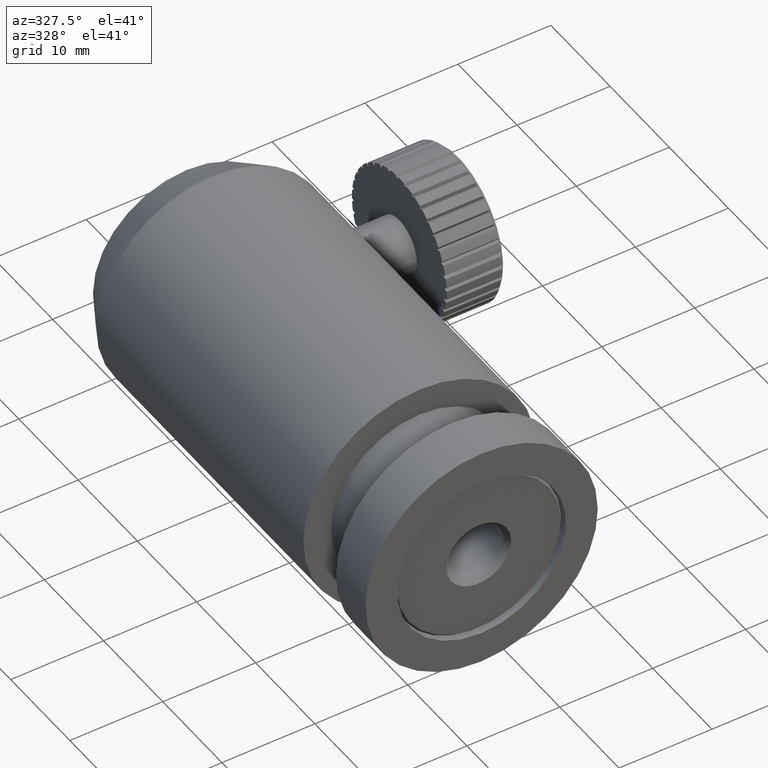
[diagram: clean part render]
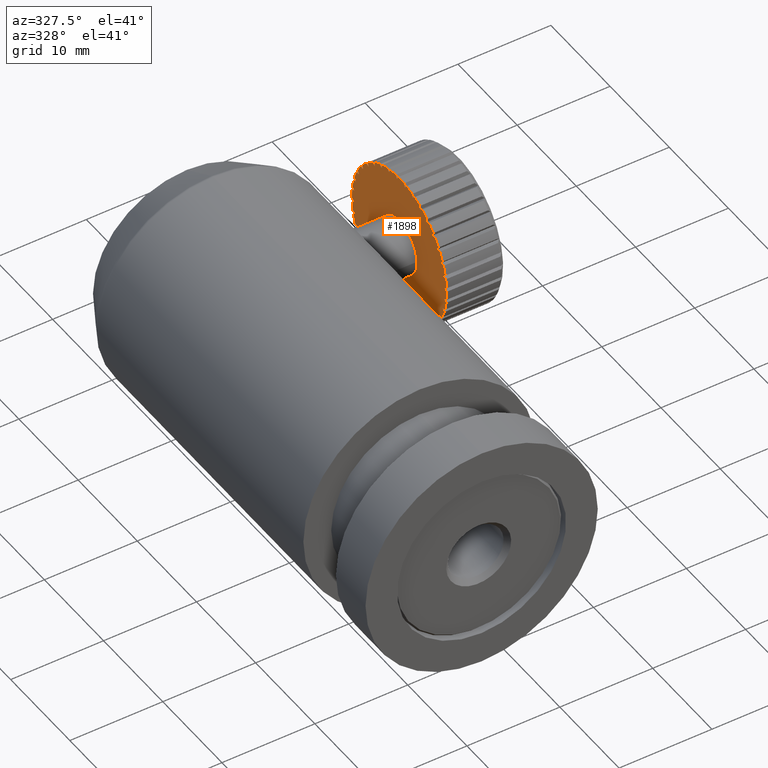
[diagram: same view with one face highlighted and labeled with its STEP entity id]
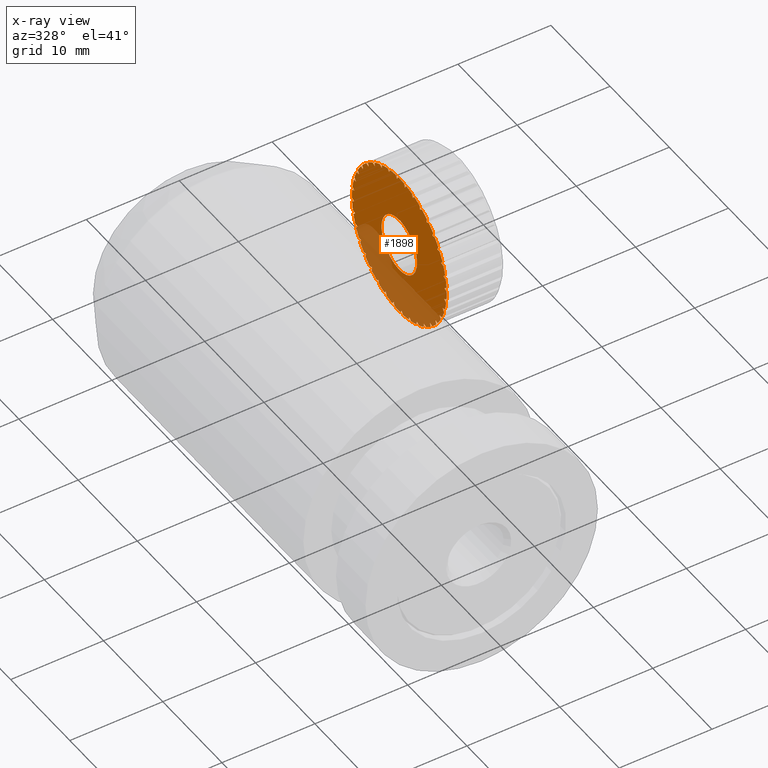
[diagram: x-ray of the same camera — body ghosted, the highlighted face saturated]
A machine part, auxiliary view. The second image highlights one B-rep face of the part: STEP entity #1898.
The next image is the same camera in x-ray: the body ghosted, the highlighted face saturated — about 32% of this face is hidden behind the body in this view.
In plain terms, the highlighted planar face has unit normal (1, 0, -0).
Its self-contained STEP definition (entity closure, byte-faithful):
#3 = ORIENTED_EDGE ( 'NONE', *, *, #1772, .T. ) ;
#6 = CARTESIAN_POINT ( 'NONE',  ( 13.73128916436951030, 22.96174065915154472, 5.588238855436226338 ) ) ;
#8 = ORIENTED_EDGE ( 'NONE', *, *, #2824, .F. ) ;
#28 = AXIS2_PLACEMENT_3D ( 'NONE', #2071, #8231, #4878 ) ;
#45 = CARTESIAN_POINT ( 'NONE',  ( 13.73128916436951208, 28.93150445634653067, 7.910154416546173017 ) ) ;
#71 = CARTESIAN_POINT ( 'NONE',  ( 13.73128916436951030, 30.17472201472069315, 4.461172996351960407 ) ) ;
#74 = CIRCLE ( 'NONE', #4597, 7.999999999999998224 ) ;
#85 = CARTESIAN_POINT ( 'NONE',  ( 13.73128916436950853, 28.68638794039017270, 1.421085471520198873E-15 ) ) ;
#100 = CARTESIAN_POINT ( 'NONE',  ( 13.73128916436951030, 36.38826839223251142, 2.163570545540131285 ) ) ;
#113 = DIRECTION ( 'NONE',  ( 1.241232669358725621E-16, 0.7972910221579309065, 0.6035950844617288258 ) ) ;
#123 = CARTESIAN_POINT ( 'NONE',  ( 13.73128916436951030, 35.71260320930042553, 3.825218816608064731 ) ) ;
#124 = DIRECTION ( 'NONE',  ( 0.0000000000000000000, 0.9987437986324323447, -0.05010813001160041580 ) ) ;
#130 = DIRECTION ( 'NONE',  ( -2.144540064596721608E-16, -0.2227769155130299439, -0.9748694507032724665 ) ) ;
#132 = VECTOR ( 'NONE', #3194, 1000.000000000000114 ) ;
#141 = VERTEX_POINT ( 'NONE', #5650 ) ;
#151 = ORIENTED_EDGE ( 'NONE', *, *, #811, .F. ) ;
#173 = LINE ( 'NONE', #7131, #8330 ) ;
#178 = DIRECTION ( 'NONE',  ( 0.0000000000000000000, 0.9987437986324323447, -0.05010813001160041580 ) ) ;
#209 = EDGE_CURVE ( 'NONE', #4206, #7584, #6363, .T. ) ;
#213 = CARTESIAN_POINT ( 'NONE',  ( 13.73128916436950853, 36.66377287524248629, -0.6011069798224846217 ) ) ;
#215 = LINE ( 'NONE', #8444, #2970 ) ;
#226 = VERTEX_POINT ( 'NONE', #7780 ) ;
#231 = AXIS2_PLACEMENT_3D ( 'NONE', #4242, #8484, #2185 ) ;
#245 = LINE ( 'NONE', #2499, #2745 ) ;
#267 = CARTESIAN_POINT ( 'NONE',  ( 13.73128916436951030, 36.27010148822699165, 2.547015670221974837 ) ) ;
#272 = CARTESIAN_POINT ( 'NONE',  ( 13.73128916436951030, 28.87805153768455568, 3.820195029769056116 ) ) ;
#285 = VECTOR ( 'NONE', #7351, 1000.000000000000114 ) ;
#288 = VERTEX_POINT ( 'NONE', #7231 ) ;
#305 = EDGE_CURVE ( 'NONE', #6090, #4719, #7958, .T. ) ;
#312 = DIRECTION ( 'NONE',  ( 1.000000000000000000, 1.264548628736567753E-17, -2.220446049250312588E-16 ) ) ;
#318 = ORIENTED_EDGE ( 'NONE', *, *, #5927, .T. ) ;
#322 = EDGE_CURVE ( 'NONE', #8235, #2217, #2041, .T. ) ;
#346 = DIRECTION ( 'NONE',  ( 2.003473315269984773E-16, 0.3886767371671687177, 0.9213741878222352355 ) ) ;
#368 = LINE ( 'NONE', #3026, #4961 ) ;
#397 = ORIENTED_EDGE ( 'NONE', *, *, #4714, .T. ) ;
#413 = CARTESIAN_POINT ( 'NONE',  ( 13.73128916436950853, 32.42767958184634125, -2.849550784555889837 ) ) ;
#430 = ORIENTED_EDGE ( 'NONE', *, *, #6804, .T. ) ;
#436 = LINE ( 'NONE', #6972, #7575 ) ;
#448 = ORIENTED_EDGE ( 'NONE', *, *, #3728, .T. ) ;
#459 = LINE ( 'NONE', #413, #5032 ) ;
#467 = CIRCLE ( 'NONE', #7084, 7.999999999999998224 ) ;
#468 = DIRECTION ( 'NONE',  ( 1.000000000000000000, 1.264548628736567753E-17, -2.220446049250312588E-16 ) ) ;
#471 = LINE ( 'NONE', #3260, #3424 ) ;
#483 = LINE ( 'NONE', #5399, #2993 ) ;
#489 = DIRECTION ( 'NONE',  ( -2.169600219397494322E-16, 0.2945042571406183418, -0.9556501674389287215 ) ) ;
#501 = CARTESIAN_POINT ( 'NONE',  ( 13.73128916436951208, 32.83855405863441490, 6.425108289087784641 ) ) ;
#502 = VERTEX_POINT ( 'NONE', #9009 ) ;
#504 = CARTESIAN_POINT ( 'NONE',  ( 13.73128916436950853, 23.25077113533980722, -1.041486893174313089 ) ) ;
#551 = CARTESIAN_POINT ( 'NONE',  ( 13.73128916436950853, 26.47999180993057422, -3.419397205699236775 ) ) ;
#557 = ORIENTED_EDGE ( 'NONE', *, *, #3407, .T. ) ;
#566 = DIRECTION ( 'NONE',  ( 0.0000000000000000000, 0.9987437986324323447, -0.05010813001160041580 ) ) ;
#574 = VECTOR ( 'NONE', #3278, 1000.000000000000114 ) ;
#600 = LINE ( 'NONE', #4740, #4258 ) ;
#606 = EDGE_CURVE ( 'NONE', #5088, #1589, #8357, .T. ) ;
#618 = DIRECTION ( 'NONE',  ( 1.000000000000000000, 1.264548628736567753E-17, -2.220446049250312588E-16 ) ) ;
#619 = AXIS2_PLACEMENT_3D ( 'NONE', #6451, #2244, #5838 ) ;
#635 = CIRCLE ( 'NONE', #8268, 7.999999999999998224 ) ;
#636 = ORIENTED_EDGE ( 'NONE', *, *, #1341, .F. ) ;
#647 = CARTESIAN_POINT ( 'NONE',  ( 13.73128916436950853, 23.25077113533983919, -1.041486893174358164 ) ) ;
#701 = EDGE_CURVE ( 'NONE', #6500, #2023, #173, .T. ) ;
#719 = VECTOR ( 'NONE', #2372, 1000.000000000000114 ) ;
#729 = EDGE_CURVE ( 'NONE', #3855, #4271, #2021, .T. ) ;
#739 = VERTEX_POINT ( 'NONE', #8490 ) ;
#752 = LINE ( 'NONE', #6199, #3150 ) ;
#757 = EDGE_CURVE ( 'NONE', #3364, #2217, #2193, .T. ) ;
#760 = ORIENTED_EDGE ( 'NONE', *, *, #5988, .F. ) ;
#770 = CARTESIAN_POINT ( 'NONE',  ( 13.73128916436950853, 33.99046617701176842, -1.580309798677999478 ) ) ;
#772 = ORIENTED_EDGE ( 'NONE', *, *, #3340, .F. ) ;
#788 = CARTESIAN_POINT ( 'NONE',  ( 13.73128916436950853, 34.41103522162884332, -5.588238855436185482 ) ) ;
#807 = DIRECTION ( 'NONE',  ( -1.464047320736779924E-17, -0.9922718216288937132, -0.1240831656643108932 ) ) ;
#810 = VECTOR ( 'NONE', #1268, 1000.000000000000114 ) ;
#811 = EDGE_CURVE ( 'NONE', #7578, #8981, #1816, .T. ) ;
#818 = LINE ( 'NONE', #7182, #2867 ) ;
#825 = EDGE_CURVE ( 'NONE', #7578, #3364, #215, .T. ) ;
#828 = DIRECTION ( 'NONE',  ( -1.801532043065187320E-16, -0.5427668128423953631, -0.8398834364820562115 ) ) ;
#838 = DIRECTION ( 'NONE',  ( 1.000000000000000000, 1.264548628736567753E-17, -2.220446049250312588E-16 ) ) ;
#854 = VERTEX_POINT ( 'NONE', #6395 ) ;
#856 = ORIENTED_EDGE ( 'NONE', *, *, #606, .T. ) ;
#867 = DIRECTION ( 'NONE',  ( -2.169600219397496787E-16, 0.2945042571406138454, -0.9556501674389301648 ) ) ;
#874 = DIRECTION ( 'NONE',  ( 0.0000000000000000000, 0.9987437986324323447, -0.05010813001160041580 ) ) ;
#875 = CIRCLE ( 'NONE', #6026, 7.999999999999998224 ) ;
#883 = EDGE_CURVE ( 'NONE', #2509, #6529, #6619, .T. ) ;
#888 = CARTESIAN_POINT ( 'NONE',  ( 13.73128916436951208, 31.97967007241447135, 7.290699061056458596 ) ) ;
#900 = ORIENTED_EDGE ( 'NONE', *, *, #305, .T. ) ;
#970 = CARTESIAN_POINT ( 'NONE',  ( 13.73128916436950853, 21.10267439255333599, -2.547015670221920658 ) ) ;
#984 = DIRECTION ( 'NONE',  ( 1.464047320736830152E-17, 0.9922718216288934912, 0.1240831656643131276 ) ) ;
#988 = DIRECTION ( 'NONE',  ( 1.000000000000000000, 1.264548628736567753E-17, -2.220446049250312588E-16 ) ) ;
#994 = ORIENTED_EDGE ( 'NONE', *, *, #2797, .T. ) ;
#1002 = VERTEX_POINT ( 'NONE', #4720 ) ;
#1011 = DIRECTION ( 'NONE',  ( 1.000000000000000000, 1.264548628736567753E-17, -2.220446049250312588E-16 ) ) ;
#1012 = VERTEX_POINT ( 'NONE', #7540 ) ;
#1014 = CIRCLE ( 'NONE', #7349, 7.999999999999998224 ) ;
#1032 = LINE ( 'NONE', #2359, #8641 ) ;
#1040 = EDGE_CURVE ( 'NONE', #1915, #502, #9048, .T. ) ;
#1048 = CARTESIAN_POINT ( 'NONE',  ( 13.73128916436951030, 27.40293725358411336, 5.383621395913395169 ) ) ;
#1051 = AXIS2_PLACEMENT_3D ( 'NONE', #4136, #3448, #4042 ) ;
#1052 = DIRECTION ( 'NONE',  ( 0.0000000000000000000, 0.9987437986324323447, -0.05010813001160041580 ) ) ;
#1054 = EDGE_CURVE ( 'NONE', #2286, #5657, #752, .T. ) ;
#1060 = VECTOR ( 'NONE', #7959, 1000.000000000000341 ) ;
#1072 = CIRCLE ( 'NONE', #3832, 7.999999999999998224 ) ;
#1073 = DIRECTION ( 'NONE',  ( 1.000000000000000000, 1.264548628736567753E-17, -2.220446049250312588E-16 ) ) ;
#1075 = DIRECTION ( 'NONE',  ( -1.613317747512337010E-16, 0.7328732519258960298, -0.6803651935626646718 ) ) ;
#1110 = LINE ( 'NONE', #1890, #2595 ) ;
#1118 = EDGE_CURVE ( 'NONE', #7614, #739, #4188, .T. ) ;
#1150 = DIRECTION ( 'NONE',  ( 1.000000000000000000, 1.264548628736567753E-17, -2.220446049250312588E-16 ) ) ;
#1156 = EDGE_CURVE ( 'NONE', #6090, #1012, #4020, .T. ) ;
#1164 = EDGE_CURVE ( 'NONE', #6844, #7384, #74, .T. ) ;
#1169 = ORIENTED_EDGE ( 'NONE', *, *, #4589, .T. ) ;
#1179 = DIRECTION ( 'NONE',  ( 0.0000000000000000000, 0.9987437986324323447, -0.05010813001160041580 ) ) ;
#1189 = CARTESIAN_POINT ( 'NONE',  ( 13.73128916436950853, 36.59717246854674499, 1.191422741548306741 ) ) ;
#1201 = DIRECTION ( 'NONE',  ( -6.247480880464230386E-17, 0.9748694507032732437, -0.2227769155130266132 ) ) ;
#1208 = DIRECTION ( 'NONE',  ( -9.876522349386143471E-17, 0.9213741878222390103, -0.3886767371671596139 ) ) ;
#1223 = DIRECTION ( 'NONE',  ( -1.544852131351072762E-16, -0.6803651935626572334, -0.7328732519259029132 ) ) ;
#1230 = VERTEX_POINT ( 'NONE', #4983 ) ;
#1235 = CARTESIAN_POINT ( 'NONE',  ( 13.73128916436950853, 36.13303967641281389, -2.923589903250964461 ) ) ;
#1260 = CARTESIAN_POINT ( 'NONE',  ( 13.73128916436950853, 36.64695960462456270, 0.7932835423657912388 ) ) ;
#1267 = VECTOR ( 'NONE', #1331, 1000.000000000000114 ) ;
#1268 = DIRECTION ( 'NONE',  ( -2.428612866367270163E-17, 0.9987437986324328998, -0.05010813001158871682 ) ) ;
#1270 = ORIENTED_EDGE ( 'NONE', *, *, #3909, .T. ) ;
#1282 = EDGE_CURVE ( 'NONE', #5355, #3198, #1575, .T. ) ;
#1283 = LINE ( 'NONE', #4822, #8885 ) ;
#1288 = CARTESIAN_POINT ( 'NONE',  ( 13.73128916436951030, 21.86054363571825121, 4.172271507030423265 ) ) ;
#1290 = VERTEX_POINT ( 'NONE', #888 ) ;
#1305 = CARTESIAN_POINT ( 'NONE',  ( 13.73128916436950853, 35.73490047723029761, -2.973377039328779059 ) ) ;
#1319 = CIRCLE ( 'NONE', #2054, 7.999999999999998224 ) ;
#1322 = LINE ( 'NONE', #2693, #8159 ) ;
#1331 = DIRECTION ( 'NONE',  ( 2.044393329701940313E-16, -0.4559769857900368151, 0.8899915664936565163 ) ) ;
#1341 = EDGE_CURVE ( 'NONE', #7082, #3770, #635, .T. ) ;
#1352 = CARTESIAN_POINT ( 'NONE',  ( 13.73128916436950853, 25.76279803713918426, -7.446651736022629642 ) ) ;
#1366 = CARTESIAN_POINT ( 'NONE',  ( 13.73128916436950853, 20.72581627615577204, -0.7932835423657372820 ) ) ;
#1409 = VERTEX_POINT ( 'NONE', #2535 ) ;
#1428 = ORIENTED_EDGE ( 'NONE', *, *, #8361, .T. ) ;
#1444 = CIRCLE ( 'NONE', #7629, 7.999999999999998224 ) ;
#1492 = ORIENTED_EDGE ( 'NONE', *, *, #6246, .T. ) ;
#1502 = CARTESIAN_POINT ( 'NONE',  ( 13.73128916436950853, 30.53945559766505724, -3.623065192956500535 ) ) ;
#1516 = DIRECTION ( 'NONE',  ( -6.247480880464422671E-17, 0.9748694507032712453, -0.2227769155130353840 ) ) ;
#1540 = VERTEX_POINT ( 'NONE', #4032 ) ;
#1549 = AXIS2_PLACEMENT_3D ( 'NONE', #4388, #6528, #6397 ) ;
#1553 = CARTESIAN_POINT ( 'NONE',  ( 13.73128916436951208, 22.26127965130243425, 4.152166118244313253 ) ) ;
#1575 = LINE ( 'NONE', #3082, #7411 ) ;
#1576 = VERTEX_POINT ( 'NONE', #6 ) ;
#1587 = VERTEX_POINT ( 'NONE', #5613 ) ;
#1589 = VERTEX_POINT ( 'NONE', #2114 ) ;
#1610 = EDGE_CURVE ( 'NONE', #1002, #5006, #8601, .T. ) ;
#1611 = VERTEX_POINT ( 'NONE', #2294 ) ;
#1617 = DIRECTION ( 'NONE',  ( -2.044393329701940313E-16, 0.4559769857900368151, -0.8899915664936565163 ) ) ;
#1620 = LINE ( 'NONE', #7246, #2810 ) ;
#1625 = VERTEX_POINT ( 'NONE', #8503 ) ;
#1641 = LINE ( 'NONE', #2921, #719 ) ;
#1649 = DIRECTION ( 'NONE',  ( 1.613317747512327150E-16, -0.7328732519259003597, 0.6803651935626598979 ) ) ;
#1652 = EDGE_CURVE ( 'NONE', #6071, #739, #7532, .T. ) ;
#1665 = ORIENTED_EDGE ( 'NONE', *, *, #209, .T. ) ;
#1678 = ORIENTED_EDGE ( 'NONE', *, *, #6833, .T. ) ;
#1684 = CIRCLE ( 'NONE', #5352, 7.999999999999998224 ) ;
#1702 = DIRECTION ( 'NONE',  ( 1.000000000000000000, 1.264548628736567753E-17, -2.220446049250312588E-16 ) ) ;
#1722 = CIRCLE ( 'NONE', #2010, 7.999999999999998224 ) ;
#1723 = VERTEX_POINT ( 'NONE', #7100 ) ;
#1732 = DIRECTION ( 'NONE',  ( 1.000000000000000000, 1.264548628736567753E-17, -2.220446049250312588E-16 ) ) ;
#1742 = CIRCLE ( 'NONE', #3485, 7.999999999999998224 ) ;
#1767 = CARTESIAN_POINT ( 'NONE',  ( 13.73128916436951208, 25.26705795071386973, 8.181613986353811541 ) ) ;
#1772 = EDGE_CURVE ( 'NONE', #6844, #6788, #5376, .T. ) ;
#1779 = LINE ( 'NONE', #5359, #6904 ) ;
#1789 = CARTESIAN_POINT ( 'NONE',  ( 13.73128916436951030, 30.50224223571791882, 5.228125684998448541 ) ) ;
#1790 = ORIENTED_EDGE ( 'NONE', *, *, #3552, .T. ) ;
#1791 = EDGE_CURVE ( 'NONE', #7907, #141, #459, .T. ) ;
#1794 = EDGE_CURVE ( 'NONE', #2568, #2536, #1072, .T. ) ;
#1797 = CARTESIAN_POINT ( 'NONE',  ( 13.73128916436950853, 28.68638794039017270, 1.421085471520198873E-15 ) ) ;
#1806 = ORIENTED_EDGE ( 'NONE', *, *, #4802, .T. ) ;
#1816 = CIRCLE ( 'NONE', #6968, 7.999999999999998224 ) ;
#1817 = LINE ( 'NONE', #3815, #7275 ) ;
#1820 = ORIENTED_EDGE ( 'NONE', *, *, #2445, .T. ) ;
#1854 = VECTOR ( 'NONE', #2871, 1000.000000000000114 ) ;
#1864 = LINE ( 'NONE', #2545, #285 ) ;
#1869 = VECTOR ( 'NONE', #130, 1000.000000000000114 ) ;
#1876 = VECTOR ( 'NONE', #6339, 1000.000000000000114 ) ;
#1884 = CIRCLE ( 'NONE', #2032, 7.999999999999998224 ) ;
#1888 = DIRECTION ( 'NONE',  ( 0.0000000000000000000, 0.9987437986324323447, -0.05010813001160041580 ) ) ;
#1890 = CARTESIAN_POINT ( 'NONE',  ( 13.73128916436951208, 29.23423258186733520, 7.894966196812040593 ) ) ;
#1892 = VECTOR ( 'NONE', #8043, 1000.000000000000000 ) ;
#1897 = VECTOR ( 'NONE', #6211, 1000.000000000000227 ) ;
#1898 = ADVANCED_FACE ( 'NONE', ( #5237, #8048 ), #7416, .F. ) ;
#1915 = VERTEX_POINT ( 'NONE', #7686 ) ;
#1929 = VERTEX_POINT ( 'NONE', #6217 ) ;
#1931 = EDGE_CURVE ( 'NONE', #2117, #7637, #5599, .T. ) ;
#1956 = CARTESIAN_POINT ( 'NONE',  ( 13.73128916436950853, 28.68638794039017270, 1.421085471520198873E-15 ) ) ;
#1978 = CARTESIAN_POINT ( 'NONE',  ( 13.73128916436950853, 28.68638794039017270, 1.421085471520198873E-15 ) ) ;
#1982 = VERTEX_POINT ( 'NONE', #1288 ) ;
#1999 = VECTOR ( 'NONE', #6908, 1000.000000000000227 ) ;
#2010 = AXIS2_PLACEMENT_3D ( 'NONE', #1978, #3937, #5513 ) ;
#2021 = CIRCLE ( 'NONE', #2463, 7.999999999999998224 ) ;
#2023 = VERTEX_POINT ( 'NONE', #2746 ) ;
#2032 = AXIS2_PLACEMENT_3D ( 'NONE', #7014, #2627, #6278 ) ;
#2041 = CIRCLE ( 'NONE', #3202, 7.999999999999998224 ) ;
#2045 = EDGE_CURVE ( 'NONE', #502, #2218, #7647, .T. ) ;
#2051 = VERTEX_POINT ( 'NONE', #8971 ) ;
#2053 = EDGE_CURVE ( 'NONE', #7291, #1002, #4156, .T. ) ;
#2054 = AXIS2_PLACEMENT_3D ( 'NONE', #5307, #3183, #1179 ) ;
#2071 = CARTESIAN_POINT ( 'NONE',  ( 13.73128916436950853, 28.68638794039017270, 1.421085471520198873E-15 ) ) ;
#2087 = CIRCLE ( 'NONE', #6210, 7.999999999999998224 ) ;
#2099 = EDGE_CURVE ( 'NONE', #1540, #5101, #818, .T. ) ;
#2105 = CARTESIAN_POINT ( 'NONE',  ( 13.73128916436951208, 29.23423258186730678, 7.894966196812061021 ) ) ;
#2114 = CARTESIAN_POINT ( 'NONE',  ( 13.73128916436951208, 21.63787540355006556, 2.973377039328827909 ) ) ;
#2117 = VERTEX_POINT ( 'NONE', #5092 ) ;
#2120 = DIRECTION ( 'NONE',  ( 1.000000000000000000, 1.264548628736567753E-17, -2.220446049250312588E-16 ) ) ;
#2140 = ORIENTED_EDGE ( 'NONE', *, *, #8067, .T. ) ;
#2143 = CIRCLE ( 'NONE', #8604, 7.999999999999998224 ) ;
#2165 = CARTESIAN_POINT ( 'NONE',  ( 13.73128916436950853, 28.68638794039017270, 1.421085471520198873E-15 ) ) ;
#2171 = EDGE_CURVE ( 'NONE', #6703, #3686, #4026, .T. ) ;
#2185 = DIRECTION ( 'NONE',  ( 0.0000000000000000000, 0.9987437986324323447, -0.05010813001160041580 ) ) ;
#2193 = LINE ( 'NONE', #5779, #7176 ) ;
#2208 = LINE ( 'NONE', #7789, #3923 ) ;
#2217 = VERTEX_POINT ( 'NONE', #2285 ) ;
#2218 = VERTEX_POINT ( 'NONE', #7860 ) ;
#2221 = LINE ( 'NONE', #4989, #1876 ) ;
#2244 = DIRECTION ( 'NONE',  ( 1.000000000000000000, 1.264548628736567753E-17, -2.220446049250312588E-16 ) ) ;
#2271 = ORIENTED_EDGE ( 'NONE', *, *, #4335, .T. ) ;
#2272 = ORIENTED_EDGE ( 'NONE', *, *, #7972, .T. ) ;
#2273 = VECTOR ( 'NONE', #1617, 1000.000000000000114 ) ;
#2277 = ORIENTED_EDGE ( 'NONE', *, *, #4685, .T. ) ;
#2284 = CIRCLE ( 'NONE', #3452, 7.999999999999998224 ) ;
#2285 = CARTESIAN_POINT ( 'NONE',  ( 13.73128916436950853, 25.39310580836582787, -7.290699061056435504 ) ) ;
#2286 = VERTEX_POINT ( 'NONE', #3199 ) ;
#2289 = EDGE_CURVE ( 'NONE', #6563, #1576, #4579, .T. ) ;
#2294 = CARTESIAN_POINT ( 'NONE',  ( 13.73128916436951208, 30.27246444005928794, 7.841196422561891310 ) ) ;
#2301 = CARTESIAN_POINT ( 'NONE',  ( 13.73128916436951208, 28.93150445634658752, 7.910154416546206768 ) ) ;
#2322 = VECTOR ( 'NONE', #5438, 1000.000000000000114 ) ;
#2332 = CIRCLE ( 'NONE', #2482, 7.999999999999998224 ) ;
#2345 = DIRECTION ( 'NONE',  ( 2.428612866367320699E-17, -0.9987437986324327888, 0.05010813001159098584 ) ) ;
#2359 = CARTESIAN_POINT ( 'NONE',  ( 13.73128916436951030, 27.65204820585033829, 4.587738455246194391 ) ) ;
#2372 = DIRECTION ( 'NONE',  ( 2.144540064596720376E-16, 0.2227769155130321088, 0.9748694507032720225 ) ) ;
#2416 = ORIENTED_EDGE ( 'NONE', *, *, #2289, .T. ) ;
#2426 = CARTESIAN_POINT ( 'NONE',  ( 13.73128916436951030, 22.81707823213574571, 6.057660499598632953 ) ) ;
#2432 = VECTOR ( 'NONE', #8731, 1000.000000000000000 ) ;
#2433 = DIRECTION ( 'NONE',  ( -2.428612866367476006E-17, 0.9987437986324324557, -0.05010813001159796637 ) ) ;
#2434 = VERTEX_POINT ( 'NONE', #6853 ) ;
#2445 = EDGE_CURVE ( 'NONE', #3572, #226, #1322, .T. ) ;
#2463 = AXIS2_PLACEMENT_3D ( 'NONE', #6487, #7181, #124 ) ;
#2471 = VECTOR ( 'NONE', #6633, 1000.000000000000227 ) ;
#2479 = LINE ( 'NONE', #1789, #1060 ) ;
#2481 = CARTESIAN_POINT ( 'NONE',  ( 13.73128916436951030, 27.40293725358411336, 5.383621395913443131 ) ) ;
#2482 = AXIS2_PLACEMENT_3D ( 'NONE', #8864, #2598, #8956 ) ;
#2483 = CARTESIAN_POINT ( 'NONE',  ( 13.73128916436950853, 22.58711162088200552, -4.617502396132230125 ) ) ;
#2499 = CARTESIAN_POINT ( 'NONE',  ( 13.73128916436951030, 29.59021938033308530, 3.967814242504545952 ) ) ;
#2509 = VERTEX_POINT ( 'NONE', #6254 ) ;
#2524 = DIRECTION ( 'NONE',  ( 0.0000000000000000000, 0.9987437986324323447, -0.05010813001160041580 ) ) ;
#2527 = CARTESIAN_POINT ( 'NONE',  ( 13.73128916436950853, 28.68638794039017270, 1.421085471520198873E-15 ) ) ;
#2534 = DIRECTION ( 'NONE',  ( -2.003473315269991429E-16, -0.3886767371671624449, -0.9213741878222379000 ) ) ;
#2535 = CARTESIAN_POINT ( 'NONE',  ( 13.73128916436950853, 20.93457853941388791, 1.977233170603724055 ) ) ;
#2536 = VERTEX_POINT ( 'NONE', #8351 ) ;
#2541 = DIRECTION ( 'NONE',  ( 1.000000000000000000, 1.264548628736567753E-17, -2.220446049250312588E-16 ) ) ;
#2545 = CARTESIAN_POINT ( 'NONE',  ( 13.73128916436951208, 32.90744801025196153, 7.798286791765123738 ) ) ;
#2555 = ORIENTED_EDGE ( 'NONE', *, *, #5696, .T. ) ;
#2558 = EDGE_LOOP ( 'NONE', ( #3722, #6356 ) ) ;
#2565 = EDGE_CURVE ( 'NONE', #1915, #6481, #2143, .T. ) ;
#2568 = VERTEX_POINT ( 'NONE', #7588 ) ;
#2571 = EDGE_CURVE ( 'NONE', #7082, #7799, #4148, .T. ) ;
#2578 = LINE ( 'NONE', #5946, #3097 ) ;
#2595 = VECTOR ( 'NONE', #7601, 1000.000000000000114 ) ;
#2598 = DIRECTION ( 'NONE',  ( 1.000000000000000000, 1.264548628736567753E-17, -2.220446049250312588E-16 ) ) ;
#2616 = VECTOR ( 'NONE', #7000, 1000.000000000000114 ) ;
#2627 = DIRECTION ( 'NONE',  ( 1.000000000000000000, 1.264548628736567753E-17, -2.220446049250312588E-16 ) ) ;
#2635 = CARTESIAN_POINT ( 'NONE',  ( 13.73128916436951208, 31.50424314960460848, 8.292193972951427128 ) ) ;
#2636 = CARTESIAN_POINT ( 'NONE',  ( 13.73128916436951208, 28.08402496626718303, 8.413156721897733448 ) ) ;
#2653 = CARTESIAN_POINT ( 'NONE',  ( 13.73128916436951030, 22.12306897267011507, 4.421930475252421999 ) ) ;
#2664 = EDGE_CURVE ( 'NONE', #5857, #141, #2284, .T. ) ;
#2666 = ORIENTED_EDGE ( 'NONE', *, *, #4758, .F. ) ;
#2674 = CARTESIAN_POINT ( 'NONE',  ( 13.73128916436951208, 30.05266755833555692, 7.093704722564202036 ) ) ;
#2688 = CARTESIAN_POINT ( 'NONE',  ( 13.73128916436950853, 28.68638794039017270, 1.421085471520198873E-15 ) ) ;
#2693 = CARTESIAN_POINT ( 'NONE',  ( 13.73128916436951208, 28.03698081737754677, 7.194834054647937904 ) ) ;
#2727 = DIRECTION ( 'NONE',  ( 0.0000000000000000000, 0.9987437986324323447, -0.05010813001160041580 ) ) ;
#2734 = CARTESIAN_POINT ( 'NONE',  ( 13.73128916436951030, 30.50224223571790816, 5.228125684998404132 ) ) ;
#2743 = LINE ( 'NONE', #3976, #8735 ) ;
#2744 = ORIENTED_EDGE ( 'NONE', *, *, #1652, .F. ) ;
#2745 = VECTOR ( 'NONE', #984, 1000.000000000000000 ) ;
#2746 = CARTESIAN_POINT ( 'NONE',  ( 13.73128916436951030, 21.22863664251014271, 1.704243403674714497 ) ) ;
#2749 = CARTESIAN_POINT ( 'NONE',  ( 13.73128916436950853, 22.31533630854380945, 0.6954023432559421902 ) ) ;
#2779 = VERTEX_POINT ( 'NONE', #5202 ) ;
#2796 = LINE ( 'NONE', #3523, #3925 ) ;
#2797 = EDGE_CURVE ( 'NONE', #8861, #8375, #8533, .T. ) ;
#2810 = VECTOR ( 'NONE', #5851, 1000.000000000000114 ) ;
#2812 = DIRECTION ( 'NONE',  ( 6.247480880464277225E-17, -0.9748694507032727996, 0.2227769155130287504 ) ) ;
#2824 = EDGE_CURVE ( 'NONE', #6500, #2218, #8163, .T. ) ;
#2826 = EDGE_CURVE ( 'NONE', #6218, #3572, #7808, .T. ) ;
#2838 = DIRECTION ( 'NONE',  ( 1.000000000000000000, 1.264548628736567753E-17, -2.220446049250312588E-16 ) ) ;
#2867 = VECTOR ( 'NONE', #4294, 1000.000000000000000 ) ;
#2869 = ORIENTED_EDGE ( 'NONE', *, *, #8877, .T. ) ;
#2871 = DIRECTION ( 'NONE',  ( 5.312223170844054903E-17, 0.9556501674389290546, 0.2945042571406172871 ) ) ;
#2872 = ORIENTED_EDGE ( 'NONE', *, *, #4293, .F. ) ;
#2883 = AXIS2_PLACEMENT_3D ( 'NONE', #4488, #312, #1052 ) ;
#2899 = CARTESIAN_POINT ( 'NONE',  ( 13.73128916436950853, 33.30389033652242148, -6.099276319508150301 ) ) ;
#2918 = ORIENTED_EDGE ( 'NONE', *, *, #2053, .T. ) ;
#2921 = CARTESIAN_POINT ( 'NONE',  ( 13.73128916436951208, 26.71265176016519405, 8.532593647656035785 ) ) ;
#2922 = CIRCLE ( 'NONE', #5423, 3.000000000000002665 ) ;
#2936 = CARTESIAN_POINT ( 'NONE',  ( 13.73128916436951030, 21.09550850492913199, -0.9492362173319346397 ) ) ;
#2948 = CIRCLE ( 'NONE', #5165, 3.000000000000002665 ) ;
#2960 = ORIENTED_EDGE ( 'NONE', *, *, #4160, .T. ) ;
#2970 = VECTOR ( 'NONE', #8400, 1000.000000000000000 ) ;
#2980 = CARTESIAN_POINT ( 'NONE',  ( 13.73128916436950853, 36.68387826402859275, -0.2003709642383039169 ) ) ;
#2990 = ORIENTED_EDGE ( 'NONE', *, *, #701, .T. ) ;
#2993 = VECTOR ( 'NONE', #8203, 1000.000000000000227 ) ;
#3009 = CARTESIAN_POINT ( 'NONE',  ( 13.73128916436951208, 23.07990756315706449, 5.204793730754381897 ) ) ;
#3026 = CARTESIAN_POINT ( 'NONE',  ( 13.73128916436950853, 28.49472434309591051, -3.820195029769058337 ) ) ;
#3035 = DIRECTION ( 'NONE',  ( -1.613317747512323205E-16, 0.7328732519259019140, -0.6803651935626582326 ) ) ;
#3049 = EDGE_CURVE ( 'NONE', #5465, #8162, #471, .T. ) ;
#3069 = DIRECTION ( 'NONE',  ( 1.000000000000000000, 1.264548628736567753E-17, -2.220446049250312588E-16 ) ) ;
#3071 = EDGE_CURVE ( 'NONE', #1723, #5906, #8415, .T. ) ;
#3082 = CARTESIAN_POINT ( 'NONE',  ( 13.73128916436951208, 27.52013003929817359, 6.301882720489022205 ) ) ;
#3093 = CARTESIAN_POINT ( 'NONE',  ( 13.73128916436950853, 28.68638794039017270, 1.421085471520198873E-15 ) ) ;
#3095 = ORIENTED_EDGE ( 'NONE', *, *, #1794, .F. ) ;
#3097 = VECTOR ( 'NONE', #3896, 1000.000000000000000 ) ;
#3099 = ORIENTED_EDGE ( 'NONE', *, *, #1118, .T. ) ;
#3124 = DIRECTION ( 'NONE',  ( 0.0000000000000000000, 0.9987437986324323447, -0.05010813001160041580 ) ) ;
#3133 = CARTESIAN_POINT ( 'NONE',  ( 13.73128916436950853, 30.93934550751585988, -7.310723780907816938 ) ) ;
#3139 = DIRECTION ( 'NONE',  ( 1.000000000000000000, 1.264548628736567753E-17, -2.220446049250312588E-16 ) ) ;
#3142 = ORIENTED_EDGE ( 'NONE', *, *, #7263, .T. ) ;
#3150 = VECTOR ( 'NONE', #3453, 1000.000000000000114 ) ;
#3152 = EDGE_CURVE ( 'NONE', #1589, #4507, #483, .T. ) ;
#3154 = LINE ( 'NONE', #7367, #1892 ) ;
#3162 = EDGE_CURVE ( 'NONE', #3657, #8039, #8077, .T. ) ;
#3174 = VERTEX_POINT ( 'NONE', #6059 ) ;
#3183 = DIRECTION ( 'NONE',  ( 1.000000000000000000, 1.264548628736567753E-17, -2.220446049250312588E-16 ) ) ;
#3186 = CARTESIAN_POINT ( 'NONE',  ( 13.73128916436950853, 28.68638794039017270, 1.421085471520198873E-15 ) ) ;
#3194 = DIRECTION ( 'NONE',  ( 2.428612866367426702E-17, -0.9987437986324325667, 0.05010813001159575286 ) ) ;
#3195 = ORIENTED_EDGE ( 'NONE', *, *, #3049, .T. ) ;
#3198 = VERTEX_POINT ( 'NONE', #3999 ) ;
#3199 = CARTESIAN_POINT ( 'NONE',  ( 13.73128916436951030, 34.94161693486450559, 4.987194624905633589 ) ) ;
#3202 = AXIS2_PLACEMENT_3D ( 'NONE', #5234, #1150, #2524 ) ;
#3208 = DIRECTION ( 'NONE',  ( -5.312223170843901445E-17, -0.9556501674389311640, -0.2945042571406105147 ) ) ;
#3212 = CARTESIAN_POINT ( 'NONE',  ( 13.73128916436951208, 28.88675890462856088, 7.997490323638422716 ) ) ;
#3217 = VECTOR ( 'NONE', #867, 1000.000000000000000 ) ;
#3235 = ORIENTED_EDGE ( 'NONE', *, *, #4331, .T. ) ;
#3260 = CARTESIAN_POINT ( 'NONE',  ( 13.73128916436951208, 27.52013003929819135, 6.301882720489070167 ) ) ;
#3265 = EDGE_CURVE ( 'NONE', #6071, #6250, #1817, .T. ) ;
#3272 = EDGE_CURVE ( 'NONE', #5609, #2434, #1684, .T. ) ;
#3274 = VERTEX_POINT ( 'NONE', #6657 ) ;
#3278 = DIRECTION ( 'NONE',  ( 2.144540064596717664E-16, 0.2227769155130365497, 0.9748694507032710233 ) ) ;
#3292 = ORIENTED_EDGE ( 'NONE', *, *, #5670, .T. ) ;
#3296 = LINE ( 'NONE', #5424, #8320 ) ;
#3320 = CIRCLE ( 'NONE', #2883, 7.999999999999998224 ) ;
#3340 = EDGE_CURVE ( 'NONE', #8386, #8520, #8606, .T. ) ;
#3356 = CARTESIAN_POINT ( 'NONE',  ( 13.73128916436950853, 33.35367747260023918, -6.497415518690666580 ) ) ;
#3357 = LINE ( 'NONE', #6832, #2322 ) ;
#3364 = VERTEX_POINT ( 'NONE', #8762 ) ;
#3369 = DIRECTION ( 'NONE',  ( 8.998989808019615434E-17, 0.8899915664936548509, 0.4559769857900399792 ) ) ;
#3377 = CARTESIAN_POINT ( 'NONE',  ( 13.73128916436950853, 24.17712155804557028, -6.608064519438110018 ) ) ;
#3378 = ORIENTED_EDGE ( 'NONE', *, *, #1164, .F. ) ;
#3398 = DIRECTION ( 'NONE',  ( 1.000000000000000000, 1.264548628736567753E-17, -2.220446049250312588E-16 ) ) ;
#3402 = CARTESIAN_POINT ( 'NONE',  ( 13.73128916436951208, 34.17040305804518141, 6.828350243981387457 ) ) ;
#3405 = DIRECTION ( 'NONE',  ( 0.0000000000000000000, 0.9987437986324323447, -0.05010813001160041580 ) ) ;
#3406 = ORIENTED_EDGE ( 'NONE', *, *, #5073, .T. ) ;
#3407 = EDGE_CURVE ( 'NONE', #8235, #854, #6884, .T. ) ;
#3410 = CARTESIAN_POINT ( 'NONE',  ( 13.73128916436951208, 24.86116912378218302, 7.026215268910296352 ) ) ;
#3424 = VECTOR ( 'NONE', #1075, 1000.000000000000000 ) ;
#3448 = DIRECTION ( 'NONE',  ( 1.000000000000000000, 1.264548628736567753E-17, -2.220446049250312588E-16 ) ) ;
#3452 = AXIS2_PLACEMENT_3D ( 'NONE', #6599, #7293, #4949 ) ;
#3453 = DIRECTION ( 'NONE',  ( -2.003473315269995620E-16, -0.3886767371671583371, -0.9213741878222395654 ) ) ;
#3482 = CARTESIAN_POINT ( 'NONE',  ( 13.73128916436951208, 32.90744801025193311, 7.798286791765144166 ) ) ;
#3485 = AXIS2_PLACEMENT_3D ( 'NONE', #5255, #2541, #8068 ) ;
#3506 = EDGE_CURVE ( 'NONE', #4378, #7012, #436, .T. ) ;
#3513 = ORIENTED_EDGE ( 'NONE', *, *, #825, .T. ) ;
#3523 = CARTESIAN_POINT ( 'NONE',  ( 13.73128916436951208, 30.47754706518353984, 6.153505692231746593 ) ) ;
#3545 = ORIENTED_EDGE ( 'NONE', *, *, #883, .T. ) ;
#3552 = EDGE_CURVE ( 'NONE', #4428, #1929, #6195, .T. ) ;
#3558 = DIRECTION ( 'NONE',  ( 0.0000000000000000000, 0.9987437986324323447, -0.05010813001160041580 ) ) ;
#3559 = DIRECTION ( 'NONE',  ( -8.998989808019759648E-17, -0.8899915664936516313, -0.4559769857900462520 ) ) ;
#3572 = VERTEX_POINT ( 'NONE', #1305 ) ;
#3586 = ORIENTED_EDGE ( 'NONE', *, *, #7427, .F. ) ;
#3611 = ORIENTED_EDGE ( 'NONE', *, *, #6126, .T. ) ;
#3613 = EDGE_CURVE ( 'NONE', #8832, #5387, #4796, .T. ) ;
#3625 = ORIENTED_EDGE ( 'NONE', *, *, #2099, .T. ) ;
#3657 = VERTEX_POINT ( 'NONE', #5576 ) ;
#3660 = ORIENTED_EDGE ( 'NONE', *, *, #7008, .F. ) ;
#3673 = VERTEX_POINT ( 'NONE', #8380 ) ;
#3677 = CARTESIAN_POINT ( 'NONE',  ( 13.73128916436951208, 28.03698081737758585, 7.194834054647980537 ) ) ;
#3683 = VERTEX_POINT ( 'NONE', #2980 ) ;
#3686 = VERTEX_POINT ( 'NONE', #100 ) ;
#3689 = DIRECTION ( 'NONE',  ( -1.241232669358730058E-16, -0.7972910221579296852, -0.6035950844617304911 ) ) ;
#3722 = ORIENTED_EDGE ( 'NONE', *, *, #7205, .T. ) ;
#3726 = ORIENTED_EDGE ( 'NONE', *, *, #7314, .F. ) ;
#3728 = EDGE_CURVE ( 'NONE', #5229, #4671, #5155, .T. ) ;
#3741 = LINE ( 'NONE', #272, #5316 ) ;
#3746 = CIRCLE ( 'NONE', #5534, 7.999999999999998224 ) ;
#3768 = DIRECTION ( 'NONE',  ( 0.0000000000000000000, 0.9987437986324323447, -0.05010813001160036029 ) ) ;
#3770 = VERTEX_POINT ( 'NONE', #788 ) ;
#3776 = ORIENTED_EDGE ( 'NONE', *, *, #7816, .T. ) ;
#3785 = CARTESIAN_POINT ( 'NONE',  ( 13.73128916436950853, 31.23340361061211823, -7.583713547836826940 ) ) ;
#3805 = VERTEX_POINT ( 'NONE', #970 ) ;
#3815 = CARTESIAN_POINT ( 'NONE',  ( 13.73128916436951030, 35.65914793556871842, 1.888910991809859885 ) ) ;
#3832 = AXIS2_PLACEMENT_3D ( 'NONE', #2527, #3069, #1888 ) ;
#3855 = VERTEX_POINT ( 'NONE', #5065 ) ;
#3870 = ORIENTED_EDGE ( 'NONE', *, *, #3265, .T. ) ;
#3874 = LINE ( 'NONE', #6712, #132 ) ;
#3876 = ORIENTED_EDGE ( 'NONE', *, *, #5937, .T. ) ;
#3885 = CARTESIAN_POINT ( 'NONE',  ( 13.73128916436950853, 36.52758436295206224, -1.586076499669139439 ) ) ;
#3896 = DIRECTION ( 'NONE',  ( -1.544852131351065367E-16, -0.6803651935626606750, -0.7328732519258996936 ) ) ;
#3909 = EDGE_CURVE ( 'NONE', #1587, #7384, #5989, .T. ) ;
#3923 = VECTOR ( 'NONE', #4309, 1000.000000000000000 ) ;
#3925 = VECTOR ( 'NONE', #8545, 999.9999999999998863 ) ;
#3933 = VERTEX_POINT ( 'NONE', #4353 ) ;
#3937 = DIRECTION ( 'NONE',  ( 1.000000000000000000, 1.264548628736567753E-17, -2.220446049250312588E-16 ) ) ;
#3938 = CARTESIAN_POINT ( 'NONE',  ( 13.73128916436951208, 34.78566425989831146, 4.617502396132274534 ) ) ;
#3966 = VERTEX_POINT ( 'NONE', #2483 ) ;
#3970 = DIRECTION ( 'NONE',  ( 0.0000000000000000000, 0.9987437986324323447, -0.05010813001160041580 ) ) ;
#3976 = CARTESIAN_POINT ( 'NONE',  ( 13.73128916436950853, 35.09504946131580994, 0.05422937272359096283 ) ) ;
#3990 = CARTESIAN_POINT ( 'NONE',  ( 13.73128916436951030, 36.14413923827020625, -1.704243403674661206 ) ) ;
#3999 = CARTESIAN_POINT ( 'NONE',  ( 13.73128916436950853, 36.43819734136646815, -1.977233170603668544 ) ) ;
#4001 = VERTEX_POINT ( 'NONE', #6540 ) ;
#4007 = ORIENTED_EDGE ( 'NONE', *, *, #1156, .F. ) ;
#4020 = CIRCLE ( 'NONE', #8008, 7.999999999999998224 ) ;
#4026 = CIRCLE ( 'NONE', #1549, 7.999999999999998224 ) ;
#4032 = CARTESIAN_POINT ( 'NONE',  ( 13.73128916436951208, 31.60997784364111141, 7.446651736022652734 ) ) ;
#4042 = DIRECTION ( 'NONE',  ( 0.0000000000000000000, 0.9987437986324323447, -0.05010813001160041580 ) ) ;
#4051 = EDGE_CURVE ( 'NONE', #4671, #7886, #1110, .T. ) ;
#4072 = CARTESIAN_POINT ( 'NONE',  ( 13.73128916436950853, 22.43115894591580783, -4.987194624905588292 ) ) ;
#4092 = CARTESIAN_POINT ( 'NONE',  ( 13.73128916436951208, 35.49482342406660251, 3.488223941293861596 ) ) ;
#4094 = CARTESIAN_POINT ( 'NONE',  ( 13.73128916436950853, 28.68638794039017270, 1.421085471520198873E-15 ) ) ;
#4095 = ORIENTED_EDGE ( 'NONE', *, *, #8577, .T. ) ;
#4102 = DIRECTION ( 'NONE',  ( 9.876522349386182914E-17, -0.9213741878222382331, 0.3886767371671614457 ) ) ;
#4112 = VECTOR ( 'NONE', #2534, 1000.000000000000000 ) ;
#4113 = EDGE_CURVE ( 'NONE', #6569, #6063, #1722, .T. ) ;
#4136 = CARTESIAN_POINT ( 'NONE',  ( 13.73128916436950853, 28.68638794039017270, 1.421085471520198873E-15 ) ) ;
#4137 = EDGE_CURVE ( 'NONE', #6250, #3686, #7512, .T. ) ;
#4148 = LINE ( 'NONE', #8869, #8028 ) ;
#4156 = LINE ( 'NONE', #2653, #1267 ) ;
#4160 = EDGE_CURVE ( 'NONE', #288, #7765, #3296, .T. ) ;
#4168 = LINE ( 'NONE', #3482, #5311 ) ;
#4186 = VECTOR ( 'NONE', #807, 1000.000000000000114 ) ;
#4187 = AXIS2_PLACEMENT_3D ( 'NONE', #5310, #8117, #566 ) ;
#4188 = LINE ( 'NONE', #7024, #810 ) ;
#4201 = DIRECTION ( 'NONE',  ( -1.857068583196326810E-16, 0.6035950844617260502, -0.7972910221579330159 ) ) ;
#4206 = VERTEX_POINT ( 'NONE', #6999 ) ;
#4207 = VECTOR ( 'NONE', #113, 1000.000000000000114 ) ;
#4228 = DIRECTION ( 'NONE',  ( 1.544852131351076460E-16, 0.6803651935626555680, 0.7328732519259043565 ) ) ;
#4242 = CARTESIAN_POINT ( 'NONE',  ( 13.73128916436950853, 28.68638794039017270, 1.421085471520198873E-15 ) ) ;
#4248 = LINE ( 'NONE', #770, #4763 ) ;
#4258 = VECTOR ( 'NONE', #1208, 1000.000000000000227 ) ;
#4265 = VECTOR ( 'NONE', #1516, 1000.000000000000227 ) ;
#4271 = VERTEX_POINT ( 'NONE', #5646 ) ;
#4293 = EDGE_CURVE ( 'NONE', #3274, #5006, #3746, .T. ) ;
#4294 = DIRECTION ( 'NONE',  ( -2.228884904297352170E-16, 0.1240831656643143210, -0.9922718216288933801 ) ) ;
#4309 = DIRECTION ( 'NONE',  ( -1.801532043065203097E-16, -0.5427668128423855931, -0.8398834364820625398 ) ) ;
#4327 = AXIS2_PLACEMENT_3D ( 'NONE', #6125, #9012, #8923 ) ;
#4331 = EDGE_CURVE ( 'NONE', #4719, #8756, #7689, .T. ) ;
#4333 = ORIENTED_EDGE ( 'NONE', *, *, #8135, .F. ) ;
#4335 = EDGE_CURVE ( 'NONE', #2023, #1409, #9060, .T. ) ;
#4352 = ORIENTED_EDGE ( 'NONE', *, *, #8773, .F. ) ;
#4353 = CARTESIAN_POINT ( 'NONE',  ( 13.73128916436950853, 26.98214453671548441, -7.457751297880030883 ) ) ;
#4378 = VERTEX_POINT ( 'NONE', #1553 ) ;
#4387 = CARTESIAN_POINT ( 'NONE',  ( 13.73128916436950853, 28.68638794039017270, 1.421085471520198873E-15 ) ) ;
#4388 = CARTESIAN_POINT ( 'NONE',  ( 13.73128916436950853, 28.68638794039017270, 1.421085471520198873E-15 ) ) ;
#4393 = EDGE_CURVE ( 'NONE', #1723, #5477, #3320, .T. ) ;
#4428 = VERTEX_POINT ( 'NONE', #5833 ) ;
#4447 = CARTESIAN_POINT ( 'NONE',  ( 13.73128916436951208, 23.91336371414361750, 7.342957755619497817 ) ) ;
#4459 = ORIENTED_EDGE ( 'NONE', *, *, #5267, .F. ) ;
#4464 = VECTOR ( 'NONE', #5569, 1000.000000000000114 ) ;
#4488 = CARTESIAN_POINT ( 'NONE',  ( 13.73128916436950853, 28.68638794039017270, 1.421085471520198873E-15 ) ) ;
#4507 = VERTEX_POINT ( 'NONE', #7503 ) ;
#4528 = DIRECTION ( 'NONE',  ( 1.000000000000000000, 1.264548628736567753E-17, -2.220446049250312588E-16 ) ) ;
#4566 = DIRECTION ( 'NONE',  ( -2.228884904297352663E-16, 0.1240831656643099912, -0.9922718216288939352 ) ) ;
#4579 = LINE ( 'NONE', #2426, #2432 ) ;
#4585 = CARTESIAN_POINT ( 'NONE',  ( 13.73128916436951208, 34.27462679582633598, 5.724647281238689267 ) ) ;
#4589 = EDGE_CURVE ( 'NONE', #5609, #5075, #5122, .T. ) ;
#4591 = CARTESIAN_POINT ( 'NONE',  ( 13.73128916436950853, 20.77560341223358265, -1.191422741548251452 ) ) ;
#4597 = AXIS2_PLACEMENT_3D ( 'NONE', #9039, #4850, #2727 ) ;
#4602 = ORIENTED_EDGE ( 'NONE', *, *, #6626, .F. ) ;
#4607 = DIRECTION ( 'NONE',  ( 2.220446049250314560E-16, 0.05010813001159439284, 0.9987437986324325667 ) ) ;
#4663 = CARTESIAN_POINT ( 'NONE',  ( 13.73128916436950853, 26.70915476978647618, -7.751809400976292785 ) ) ;
#4671 = VERTEX_POINT ( 'NONE', #8620 ) ;
#4673 = CIRCLE ( 'NONE', #6896, 7.999999999999998224 ) ;
#4685 = EDGE_CURVE ( 'NONE', #3966, #2779, #2221, .T. ) ;
#4709 = DIRECTION ( 'NONE',  ( 0.0000000000000000000, 0.9987437986324323447, -0.05010813001160041580 ) ) ;
#4714 = EDGE_CURVE ( 'NONE', #5657, #6063, #245, .T. ) ;
#4719 = VERTEX_POINT ( 'NONE', #3133 ) ;
#4720 = CARTESIAN_POINT ( 'NONE',  ( 13.73128916436950853, 28.30306074580142806, -7.640390059538106904 ) ) ;
#4723 = VECTOR ( 'NONE', #828, 1000.000000000000114 ) ;
#4734 = DIRECTION ( 'NONE',  ( 1.857068583196317689E-16, -0.6035950844617317124, 0.7972910221579287970 ) ) ;
#4740 = CARTESIAN_POINT ( 'NONE',  ( 13.73128916436951030, 27.65204820585035961, 4.587738455246155311 ) ) ;
#4751 = DIRECTION ( 'NONE',  ( 1.000000000000000000, 1.264548628736567753E-17, -2.220446049250312588E-16 ) ) ;
#4752 = LINE ( 'NONE', #2635, #8003 ) ;
#4758 = EDGE_CURVE ( 'NONE', #288, #8756, #1742, .T. ) ;
#4763 = VECTOR ( 'NONE', #3559, 1000.000000000000227 ) ;
#4796 = LINE ( 'NONE', #7620, #7862 ) ;
#4802 = EDGE_CURVE ( 'NONE', #5725, #1587, #1032, .T. ) ;
#4814 = ORIENTED_EDGE ( 'NONE', *, *, #8682, .T. ) ;
#4822 = CARTESIAN_POINT ( 'NONE',  ( 13.73128916436951030, 22.81707823213571729, 6.057660499598592985 ) ) ;
#4835 = VERTEX_POINT ( 'NONE', #7979 ) ;
#4850 = DIRECTION ( 'NONE',  ( 1.000000000000000000, 1.264548628736567753E-17, -2.220446049250312588E-16 ) ) ;
#4862 = EDGE_CURVE ( 'NONE', #4986, #1290, #4673, .T. ) ;
#4878 = DIRECTION ( 'NONE',  ( 0.0000000000000000000, 0.9987437986324323447, -0.05010813001160041580 ) ) ;
#4885 = CARTESIAN_POINT ( 'NONE',  ( 13.73128916436950853, 28.08528096056760148, -7.977384934852309151 ) ) ;
#4912 = VERTEX_POINT ( 'NONE', #1260 ) ;
#4931 = DIRECTION ( 'NONE',  ( 2.044393329701938094E-16, -0.4559769857900387580, 0.8899915664936555171 ) ) ;
#4932 = EDGE_CURVE ( 'NONE', #6788, #2051, #3357, .T. ) ;
#4949 = DIRECTION ( 'NONE',  ( 0.0000000000000000000, 0.9987437986324323447, -0.05010813001160041580 ) ) ;
#4959 = DIRECTION ( 'NONE',  ( 0.0000000000000000000, 0.9987437986324323447, -0.05010813001160041580 ) ) ;
#4961 = VECTOR ( 'NONE', #2345, 1000.000000000000114 ) ;
#4983 = CARTESIAN_POINT ( 'NONE',  ( 13.73128916436950853, 21.37566415948234777, -2.252957567125661420 ) ) ;
#4986 = VERTEX_POINT ( 'NONE', #7525 ) ;
#4989 = CARTESIAN_POINT ( 'NONE',  ( 13.73128916436950853, 30.53945559766500750, -3.623065192956510749 ) ) ;
#5006 = VERTEX_POINT ( 'NONE', #4885 ) ;
#5018 = DIRECTION ( 'NONE',  ( 0.0000000000000000000, 0.9987437986324323447, -0.05010813001160041580 ) ) ;
#5029 = ORIENTED_EDGE ( 'NONE', *, *, #5331, .F. ) ;
#5032 = VECTOR ( 'NONE', #3208, 1000.000000000000114 ) ;
#5053 = CARTESIAN_POINT ( 'NONE',  ( 13.73128916436950853, 28.68638794039017270, 1.421085471520198873E-15 ) ) ;
#5056 = CARTESIAN_POINT ( 'NONE',  ( 13.73128916436951208, 26.43343037326453526, 7.310723780907834701 ) ) ;
#5060 = ORIENTED_EDGE ( 'NONE', *, *, #1040, .T. ) ;
#5065 = CARTESIAN_POINT ( 'NONE',  ( 13.73128916436951208, 27.49496519884194612, 7.910784528156593609 ) ) ;
#5073 = EDGE_CURVE ( 'NONE', #6569, #7614, #2208, .T. ) ;
#5075 = VERTEX_POINT ( 'NONE', #2936 ) ;
#5087 = ORIENTED_EDGE ( 'NONE', *, *, #4932, .T. ) ;
#5088 = VERTEX_POINT ( 'NONE', #8421 ) ;
#5090 = CARTESIAN_POINT ( 'NONE',  ( 13.73128916436950853, 20.84519151782830093, 1.586076499669194728 ) ) ;
#5092 = CARTESIAN_POINT ( 'NONE',  ( 13.73128916436950853, 21.66017267147989500, -3.825218816608013217 ) ) ;
#5095 = CARTESIAN_POINT ( 'NONE',  ( 13.73128916436951208, 30.12780201304352445, 8.310618066724270392 ) ) ;
#5101 = VERTEX_POINT ( 'NONE', #8463 ) ;
#5105 = ORIENTED_EDGE ( 'NONE', *, *, #757, .T. ) ;
#5114 = AXIS2_PLACEMENT_3D ( 'NONE', #1797, #1702, #7331 ) ;
#5122 = LINE ( 'NONE', #7938, #4207 ) ;
#5139 = EDGE_CURVE ( 'NONE', #5229, #8039, #1444, .T. ) ;
#5145 = CARTESIAN_POINT ( 'NONE',  ( 13.73128916436951030, 35.18380345908082063, 4.667289532210091352 ) ) ;
#5148 = DIRECTION ( 'NONE',  ( 0.0000000000000000000, 0.9987437986324323447, -0.05010813001160041580 ) ) ;
#5155 = LINE ( 'NONE', #2301, #2273 ) ;
#5161 = ORIENTED_EDGE ( 'NONE', *, *, #5139, .F. ) ;
#5165 = AXIS2_PLACEMENT_3D ( 'NONE', #7795, #838, #8612 ) ;
#5178 = CARTESIAN_POINT ( 'NONE',  ( 13.73128916436950853, 28.68638794039017270, 1.421085471520198873E-15 ) ) ;
#5202 = CARTESIAN_POINT ( 'NONE',  ( 13.73128916436950853, 22.18897242169948925, -4.667289532210046055 ) ) ;
#5229 = VERTEX_POINT ( 'NONE', #3212 ) ;
#5234 = CARTESIAN_POINT ( 'NONE',  ( 13.73128916436950853, 28.68638794039017270, 1.421085471520198873E-15 ) ) ;
#5237 = FACE_OUTER_BOUND ( 'NONE', #5502, .T. ) ;
#5255 = CARTESIAN_POINT ( 'NONE',  ( 13.73128916436950853, 28.68638794039017270, 1.421085471520198873E-15 ) ) ;
#5264 = DIRECTION ( 'NONE',  ( 1.000000000000000000, 1.264548628736567753E-17, -2.220446049250312588E-16 ) ) ;
#5267 = EDGE_CURVE ( 'NONE', #2286, #8375, #6891, .T. ) ;
#5307 = CARTESIAN_POINT ( 'NONE',  ( 13.73128916436950853, 28.68638794039017270, 1.421085471520198873E-15 ) ) ;
#5310 = CARTESIAN_POINT ( 'NONE',  ( 13.73128916436950853, 28.68638794039017270, 1.421085471520198873E-15 ) ) ;
#5311 = VECTOR ( 'NONE', #6318, 1000.000000000000114 ) ;
#5316 = VECTOR ( 'NONE', #2433, 1000.000000000000114 ) ;
#5318 = CARTESIAN_POINT ( 'NONE',  ( 13.73128916436951208, 26.71265176016523313, 8.532593647656037561 ) ) ;
#5331 = EDGE_CURVE ( 'NONE', #1611, #7886, #1884, .T. ) ;
#5352 = AXIS2_PLACEMENT_3D ( 'NONE', #1956, #5264, #5969 ) ;
#5355 = VERTEX_POINT ( 'NONE', #3990 ) ;
#5359 = CARTESIAN_POINT ( 'NONE',  ( 13.73128916436951208, 30.12780201304348893, 8.310618066724263286 ) ) ;
#5376 = LINE ( 'NONE', #2481, #8705 ) ;
#5384 = LINE ( 'NONE', #8796, #4112 ) ;
#5387 = VERTEX_POINT ( 'NONE', #8194 ) ;
#5399 = CARTESIAN_POINT ( 'NONE',  ( 13.73128916436951030, 21.93770449786940091, 2.577331658515750856 ) ) ;
#5417 = AXIS2_PLACEMENT_3D ( 'NONE', #6618, #4528, #6571 ) ;
#5423 = AXIS2_PLACEMENT_3D ( 'NONE', #3093, #988, #3768 ) ;
#5424 = CARTESIAN_POINT ( 'NONE',  ( 13.73128916436951030, 21.93770449786939736, 2.577331658515695345 ) ) ;
#5438 = DIRECTION ( 'NONE',  ( 2.220446049250313574E-16, 0.05010813001159915986, 0.9987437986324323447 ) ) ;
#5465 = VERTEX_POINT ( 'NONE', #7701 ) ;
#5477 = VERTEX_POINT ( 'NONE', #3356 ) ;
#5489 = LINE ( 'NONE', #3402, #8660 ) ;
#5497 = DIRECTION ( 'NONE',  ( 1.000000000000000000, 1.264548628736567753E-17, -2.220446049250312588E-16 ) ) ;
#5502 = EDGE_LOOP ( 'NONE', ( #5029, #430, #1790, #4333, #3625, #7656, #7161, #6600, #1428, #3095, #6408, #994, #4459, #6553, #397, #8825, #3406, #3099, #2744, #3870, #8372, #8912, #4095, #2140, #3660, #4814, #3545, #8178, #3876, #8664, #8205, #7936, #1820, #6693, #3292, #1665, #4352, #8615, #318, #636, #5951, #2869, #5887, #8475, #3142, #4007, #900, #3235, #2666, #2960, #3776, #3586, #2918, #6983, #2872, #7786, #2272, #151, #3513, #5105, #8625, #557, #1492, #772, #6264, #7522, #6564, #2555, #2277, #760, #6456, #1678, #8822, #3611, #5645, #5955, #1169, #7357, #8626, #5060, #6389, #8, #2990, #2271, #8360, #856, #7352, #7688, #5728, #7685, #7746, #5741, #2416, #4602, #1806, #1270, #3378, #3, #5087, #3726, #3195, #5770, #7306, #7871, #6001, #5161, #448, #6643 ) ) ;
#5513 = DIRECTION ( 'NONE',  ( 0.0000000000000000000, 0.9987437986324323447, -0.05010813001160041580 ) ) ;
#5534 = AXIS2_PLACEMENT_3D ( 'NONE', #85, #7137, #4959 ) ;
#5554 = CIRCLE ( 'NONE', #8342, 7.999999999999998224 ) ;
#5569 = DIRECTION ( 'NONE',  ( 1.320547068448343895E-16, -0.8398834364820604304, 0.5427668128423887017 ) ) ;
#5576 = CARTESIAN_POINT ( 'NONE',  ( 13.73128916436951208, 27.73715172305826115, 7.590879435461048708 ) ) ;
#5578 = CARTESIAN_POINT ( 'NONE',  ( 13.73128916436950853, 21.87795245671371447, -3.488223941293812302 ) ) ;
#5599 = LINE ( 'NONE', #2105, #1999 ) ;
#5601 = CIRCLE ( 'NONE', #28, 7.999999999999998224 ) ;
#5609 = VERTEX_POINT ( 'NONE', #4591 ) ;
#5613 = CARTESIAN_POINT ( 'NONE',  ( 13.73128916436951208, 24.06888554425795945, 6.099276319508185829 ) ) ;
#5645 = ORIENTED_EDGE ( 'NONE', *, *, #5880, .T. ) ;
#5646 = CARTESIAN_POINT ( 'NONE',  ( 13.73128916436951208, 26.52281739485012224, 7.701880451842365360 ) ) ;
#5647 = DIRECTION ( 'NONE',  ( 0.0000000000000000000, 0.9987437986324323447, -0.05010813001160041580 ) ) ;
#5650 = CARTESIAN_POINT ( 'NONE',  ( 13.73128916436950853, 23.09814908495396679, -5.724647281238646634 ) ) ;
#5657 = VERTEX_POINT ( 'NONE', #3938 ) ;
#5670 = EDGE_CURVE ( 'NONE', #7126, #4206, #368, .T. ) ;
#5695 = CARTESIAN_POINT ( 'NONE',  ( 13.73128916436950853, 22.31533630854382722, 0.6954023432558936735 ) ) ;
#5696 = EDGE_CURVE ( 'NONE', #5857, #3966, #7964, .T. ) ;
#5724 = CARTESIAN_POINT ( 'NONE',  ( 13.73128916436950853, 33.67358256529578142, -6.255228994474347104 ) ) ;
#5725 = VERTEX_POINT ( 'NONE', #5940 ) ;
#5728 = ORIENTED_EDGE ( 'NONE', *, *, #8394, .T. ) ;
#5740 = CARTESIAN_POINT ( 'NONE',  ( 13.73128916436950853, 24.51411643335977431, -6.825844304671933038 ) ) ;
#5741 = ORIENTED_EDGE ( 'NONE', *, *, #8188, .T. ) ;
#5770 = ORIENTED_EDGE ( 'NONE', *, *, #6758, .T. ) ;
#5779 = CARTESIAN_POINT ( 'NONE',  ( 13.73128916436950853, 35.09504946131578862, 0.05422937272354683841 ) ) ;
#5784 = CARTESIAN_POINT ( 'NONE',  ( 13.73128916436950853, 28.68638794039017270, 1.421085471520198873E-15 ) ) ;
#5787 = LINE ( 'NONE', #8599, #4265 ) ;
#5801 = CARTESIAN_POINT ( 'NONE',  ( 13.73128916436950853, 29.63562415772213754, -7.590879435461039826 ) ) ;
#5833 = CARTESIAN_POINT ( 'NONE',  ( 13.73128916436951208, 30.39063134406480771, 7.457751297880047758 ) ) ;
#5838 = DIRECTION ( 'NONE',  ( 0.0000000000000000000, 0.9987437986324323447, -0.05010813001160041580 ) ) ;
#5851 = DIRECTION ( 'NONE',  ( 9.876522349386276591E-17, -0.9213741878222364567, 0.3886767371671657756 ) ) ;
#5857 = VERTEX_POINT ( 'NONE', #4072 ) ;
#5880 = EDGE_CURVE ( 'NONE', #1230, #2434, #6868, .T. ) ;
#5887 = ORIENTED_EDGE ( 'NONE', *, *, #4393, .F. ) ;
#5906 = VERTEX_POINT ( 'NONE', #8406 ) ;
#5927 = EDGE_CURVE ( 'NONE', #5387, #3770, #7866, .T. ) ;
#5931 = EDGE_CURVE ( 'NONE', #6218, #3198, #5554, .T. ) ;
#5934 = CARTESIAN_POINT ( 'NONE',  ( 13.73128916436950853, 23.39220718805022514, -5.997637048167655749 ) ) ;
#5937 = EDGE_CURVE ( 'NONE', #8363, #5355, #7909, .T. ) ;
#5940 = CARTESIAN_POINT ( 'NONE',  ( 13.73128916436951208, 23.69919331548460306, 6.255228994474385296 ) ) ;
#5946 = CARTESIAN_POINT ( 'NONE',  ( 13.73128916436951030, 35.65914793556871842, 1.888910991809809925 ) ) ;
#5951 = ORIENTED_EDGE ( 'NONE', *, *, #2571, .T. ) ;
#5954 = EDGE_CURVE ( 'NONE', #5101, #1290, #2796, .T. ) ;
#5955 = ORIENTED_EDGE ( 'NONE', *, *, #3272, .F. ) ;
#5957 = VECTOR ( 'NONE', #4228, 1000.000000000000114 ) ;
#5964 = CARTESIAN_POINT ( 'NONE',  ( 13.73128916436951208, 24.01909840818014530, 6.497415518690702108 ) ) ;
#5969 = DIRECTION ( 'NONE',  ( 0.0000000000000000000, 0.9987437986324323447, -0.05010813001160041580 ) ) ;
#5988 = EDGE_CURVE ( 'NONE', #2117, #2779, #7044, .T. ) ;
#5989 = LINE ( 'NONE', #4447, #7315 ) ;
#6001 = ORIENTED_EDGE ( 'NONE', *, *, #3162, .T. ) ;
#6026 = AXIS2_PLACEMENT_3D ( 'NONE', #6057, #4751, #6197 ) ;
#6044 = CARTESIAN_POINT ( 'NONE',  ( 13.73128916436951208, 29.28749492021274392, 7.977384934852312703 ) ) ;
#6057 = CARTESIAN_POINT ( 'NONE',  ( 13.73128916436950853, 28.68638794039017270, 1.421085471520198873E-15 ) ) ;
#6059 = CARTESIAN_POINT ( 'NONE',  ( 13.73128916436951030, 22.68875089222253649, 5.294180752339968876 ) ) ;
#6063 = VERTEX_POINT ( 'NONE', #5145 ) ;
#6071 = VERTEX_POINT ( 'NONE', #267 ) ;
#6086 = CARTESIAN_POINT ( 'NONE',  ( 13.73128916436950853, 28.68638794039017270, 1.421085471520198873E-15 ) ) ;
#6087 = CARTESIAN_POINT ( 'NONE',  ( 13.73128916436950853, 28.68638794039017270, 1.421085471520198873E-15 ) ) ;
#6090 = VERTEX_POINT ( 'NONE', #3785 ) ;
#6125 = CARTESIAN_POINT ( 'NONE',  ( 13.73128916436951208, 29.08725298048297603, 7.989950389059460534 ) ) ;
#6126 = EDGE_CURVE ( 'NONE', #3805, #1230, #3154, .T. ) ;
#6144 = CARTESIAN_POINT ( 'NONE',  ( 13.73128916436950853, 28.68638794039017270, 1.421085471520198873E-15 ) ) ;
#6175 = DIRECTION ( 'NONE',  ( 1.320547068448352523E-16, -0.8398834364820579879, 0.5427668128423928096 ) ) ;
#6195 = LINE ( 'NONE', #2674, #5957 ) ;
#6197 = DIRECTION ( 'NONE',  ( 0.0000000000000000000, 0.9987437986324323447, -0.05010813001160041580 ) ) ;
#6199 = CARTESIAN_POINT ( 'NONE',  ( 13.73128916436951030, 35.13253750310723689, 5.439779682568993913 ) ) ;
#6210 = AXIS2_PLACEMENT_3D ( 'NONE', #8738, #1011, #5148 ) ;
#6211 = DIRECTION ( 'NONE',  ( -8.998989808019662273E-17, -0.8899915664936537407, -0.4559769857900420331 ) ) ;
#6217 = CARTESIAN_POINT ( 'NONE',  ( 13.73128916436951208, 30.66362111099381593, 7.751809400976311437 ) ) ;
#6218 = VERTEX_POINT ( 'NONE', #1235 ) ;
#6246 = EDGE_CURVE ( 'NONE', #854, #8520, #7548, .T. ) ;
#6250 = VERTEX_POINT ( 'NONE', #9006 ) ;
#6254 = CARTESIAN_POINT ( 'NONE',  ( 13.73128916436951030, 36.32677799992828227, -0.3833271945886622123 ) ) ;
#6264 = ORIENTED_EDGE ( 'NONE', *, *, #6678, .T. ) ;
#6278 = DIRECTION ( 'NONE',  ( 0.0000000000000000000, 0.9987437986324323447, -0.05010813001160041580 ) ) ;
#6318 = DIRECTION ( 'NONE',  ( -2.220446049250316039E-16, -0.05010813001158746088, -0.9987437986324328998 ) ) ;
#6339 = DIRECTION ( 'NONE',  ( -1.464047320736684706E-17, -0.9922718216288942683, -0.1240831656643066744 ) ) ;
#6356 = ORIENTED_EDGE ( 'NONE', *, *, #7729, .T. ) ;
#6363 = LINE ( 'NONE', #45, #7175 ) ;
#6389 = ORIENTED_EDGE ( 'NONE', *, *, #2045, .T. ) ;
#6395 = CARTESIAN_POINT ( 'NONE',  ( 13.73128916436950853, 24.53422182214588432, -6.425108289087753555 ) ) ;
#6397 = DIRECTION ( 'NONE',  ( 0.0000000000000000000, 0.9987437986324323447, -0.05010813001160041580 ) ) ;
#6408 = ORIENTED_EDGE ( 'NONE', *, *, #7478, .T. ) ;
#6439 = EDGE_CURVE ( 'NONE', #3855, #3657, #8397, .T. ) ;
#6442 = DIRECTION ( 'NONE',  ( 5.312223170843857687E-17, 0.9556501674389317191, 0.2945042571406085719 ) ) ;
#6445 = CARTESIAN_POINT ( 'NONE',  ( 13.73128916436951208, 34.17040305804520983, 6.828350243981354595 ) ) ;
#6451 = CARTESIAN_POINT ( 'NONE',  ( 13.73128916436950853, 28.68638794039017270, 1.421085471520198873E-15 ) ) ;
#6454 = CARTESIAN_POINT ( 'NONE',  ( 13.73128916436951030, 35.65934087095506300, 3.742800078567716682 ) ) ;
#6456 = ORIENTED_EDGE ( 'NONE', *, *, #1931, .T. ) ;
#6481 = VERTEX_POINT ( 'NONE', #1366 ) ;
#6487 = CARTESIAN_POINT ( 'NONE',  ( 13.73128916436950853, 28.68638794039017270, 1.421085471520198873E-15 ) ) ;
#6500 = VERTEX_POINT ( 'NONE', #5090 ) ;
#6528 = DIRECTION ( 'NONE',  ( 1.000000000000000000, 1.264548628736567753E-17, -2.220446049250312588E-16 ) ) ;
#6529 = VERTEX_POINT ( 'NONE', #213 ) ;
#6536 = VECTOR ( 'NONE', #4607, 1000.000000000000114 ) ;
#6540 = CARTESIAN_POINT ( 'NONE',  ( 13.73128916436950853, 25.69015654449287567, 0.1503243900348035789 ) ) ;
#6553 = ORIENTED_EDGE ( 'NONE', *, *, #1054, .T. ) ;
#6563 = VERTEX_POINT ( 'NONE', #3009 ) ;
#6564 = ORIENTED_EDGE ( 'NONE', *, *, #2664, .F. ) ;
#6569 = VERTEX_POINT ( 'NONE', #123 ) ;
#6571 = DIRECTION ( 'NONE',  ( 0.0000000000000000000, 0.9987437986324323447, -0.05010813001160041580 ) ) ;
#6599 = CARTESIAN_POINT ( 'NONE',  ( 13.73128916436950853, 28.68638794039017270, 1.421085471520198873E-15 ) ) ;
#6600 = ORIENTED_EDGE ( 'NONE', *, *, #8085, .T. ) ;
#6604 = DIRECTION ( 'NONE',  ( -9.876522349386318500E-17, 0.9213741878222356796, -0.3886767371671676630 ) ) ;
#6618 = CARTESIAN_POINT ( 'NONE',  ( 13.73128916436950853, 28.68638794039017270, 1.421085471520198873E-15 ) ) ;
#6619 = LINE ( 'NONE', #1048, #6949 ) ;
#6626 = EDGE_CURVE ( 'NONE', #5725, #1576, #8649, .T. ) ;
#6633 = DIRECTION ( 'NONE',  ( 2.003473315269989210E-16, 0.3886767371671644988, 0.9213741878222370119 ) ) ;
#6643 = ORIENTED_EDGE ( 'NONE', *, *, #4051, .T. ) ;
#6657 = CARTESIAN_POINT ( 'NONE',  ( 13.73128916436950853, 27.10031144072100417, -7.841196422561876211 ) ) ;
#6678 = EDGE_CURVE ( 'NONE', #8386, #7907, #1641, .T. ) ;
#6687 = EDGE_CURVE ( 'NONE', #5088, #1409, #1014, .T. ) ;
#6693 = ORIENTED_EDGE ( 'NONE', *, *, #8390, .F. ) ;
#6703 = VERTEX_POINT ( 'NONE', #1189 ) ;
#6712 = CARTESIAN_POINT ( 'NONE',  ( 13.73128916436950853, 28.49472434309585722, -3.820195029769055672 ) ) ;
#6750 = EDGE_CURVE ( 'NONE', #8363, #6529, #2332, .T. ) ;
#6758 = EDGE_CURVE ( 'NONE', #8162, #4271, #8210, .T. ) ;
#6762 = DIRECTION ( 'NONE',  ( 0.0000000000000000000, 0.9987437986324323447, -0.05010813001160041580 ) ) ;
#6788 = VERTEX_POINT ( 'NONE', #6849 ) ;
#6804 = EDGE_CURVE ( 'NONE', #1611, #4428, #1779, .T. ) ;
#6832 = CARTESIAN_POINT ( 'NONE',  ( 13.73128916436951208, 25.26705795071391236, 8.181613986353827528 ) ) ;
#6833 = EDGE_CURVE ( 'NONE', #7637, #4835, #3874, .T. ) ;
#6844 = VERTEX_POINT ( 'NONE', #3410 ) ;
#6849 = CARTESIAN_POINT ( 'NONE',  ( 13.73128916436951208, 25.19816399909638349, 6.808435483676470668 ) ) ;
#6853 = CARTESIAN_POINT ( 'NONE',  ( 13.73128916436950853, 20.98450748854781622, -2.163570545540076662 ) ) ;
#6854 = VECTOR ( 'NONE', #6175, 999.9999999999998863 ) ;
#6860 = CARTESIAN_POINT ( 'NONE',  ( 13.73128916436951030, 29.59021938033304977, 3.967814242504529521 ) ) ;
#6868 = LINE ( 'NONE', #551, #7067 ) ;
#6884 = LINE ( 'NONE', #1767, #6536 ) ;
#6891 = CIRCLE ( 'NONE', #5114, 7.999999999999998224 ) ;
#6896 = AXIS2_PLACEMENT_3D ( 'NONE', #6144, #3398, #7662 ) ;
#6904 = VECTOR ( 'NONE', #489, 1000.000000000000000 ) ;
#6908 = DIRECTION ( 'NONE',  ( 1.801532043065193729E-16, 0.5427668128423914773, 0.8398834364820586540 ) ) ;
#6949 = VECTOR ( 'NONE', #7950, 1000.000000000000000 ) ;
#6968 = AXIS2_PLACEMENT_3D ( 'NONE', #4387, #7225, #3558 ) ;
#6972 = CARTESIAN_POINT ( 'NONE',  ( 13.73128916436951030, 22.12306897267010797, 4.421930475252399795 ) ) ;
#6983 = ORIENTED_EDGE ( 'NONE', *, *, #1610, .T. ) ;
#6999 = CARTESIAN_POINT ( 'NONE',  ( 13.73128916436950853, 35.11149622947794313, -4.152166118244265292 ) ) ;
#7000 = DIRECTION ( 'NONE',  ( -5.312223170844005599E-17, -0.9556501674389297207, -0.2945042571406150111 ) ) ;
#7008 = EDGE_CURVE ( 'NONE', #3683, #4912, #7500, .T. ) ;
#7012 = VERTEX_POINT ( 'NONE', #8344 ) ;
#7014 = CARTESIAN_POINT ( 'NONE',  ( 13.73128916436950853, 28.68638794039017270, 1.421085471520198873E-15 ) ) ;
#7020 = DIRECTION ( 'NONE',  ( -2.144540064596724566E-16, -0.2227769155130252254, -0.9748694507032734657 ) ) ;
#7022 = CARTESIAN_POINT ( 'NONE',  ( 13.73128916436951030, 36.27726737585120276, 0.9492362173319874863 ) ) ;
#7023 = VECTOR ( 'NONE', #8365, 999.9999999999998863 ) ;
#7024 = CARTESIAN_POINT ( 'NONE',  ( 13.73128916436951030, 28.87805153768459476, 3.820195029769052120 ) ) ;
#7044 = CIRCLE ( 'NONE', #9089, 7.999999999999998224 ) ;
#7067 = VECTOR ( 'NONE', #8975, 1000.000000000000000 ) ;
#7082 = VERTEX_POINT ( 'NONE', #5724 ) ;
#7084 = AXIS2_PLACEMENT_3D ( 'NONE', #6086, #468, #3124 ) ;
#7100 = CARTESIAN_POINT ( 'NONE',  ( 13.73128916436950853, 32.51160675699821212, -7.026215268910266154 ) ) ;
#7126 = VERTEX_POINT ( 'NONE', #8672 ) ;
#7130 = AXIS2_PLACEMENT_3D ( 'NONE', #3186, #3139, #4709 ) ;
#7131 = CARTESIAN_POINT ( 'NONE',  ( 13.73128916436951030, 30.17472201472067184, 4.461172996351928433 ) ) ;
#7137 = DIRECTION ( 'NONE',  ( 1.000000000000000000, 1.264548628736567753E-17, -2.220446049250312588E-16 ) ) ;
#7161 = ORIENTED_EDGE ( 'NONE', *, *, #4862, .F. ) ;
#7169 = VECTOR ( 'NONE', #1201, 1000.000000000000227 ) ;
#7175 = VECTOR ( 'NONE', #7913, 1000.000000000000114 ) ;
#7176 = VECTOR ( 'NONE', #3689, 1000.000000000000114 ) ;
#7181 = DIRECTION ( 'NONE',  ( 1.000000000000000000, 1.264548628736567753E-17, -2.220446049250312588E-16 ) ) ;
#7182 = CARTESIAN_POINT ( 'NONE',  ( 13.73128916436951208, 31.50424314960457295, 8.292193972951434233 ) ) ;
#7193 = VECTOR ( 'NONE', #1649, 1000.000000000000114 ) ;
#7205 = EDGE_CURVE ( 'NONE', #1625, #4001, #2922, .T. ) ;
#7225 = DIRECTION ( 'NONE',  ( 1.000000000000000000, 1.264548628736567753E-17, -2.220446049250312588E-16 ) ) ;
#7231 = CARTESIAN_POINT ( 'NONE',  ( 13.73128916436950853, 29.87781068193845257, -7.910784528156582951 ) ) ;
#7237 = CARTESIAN_POINT ( 'NONE',  ( 13.73128916436950853, 28.68638794039017270, 1.421085471520198873E-15 ) ) ;
#7246 = CARTESIAN_POINT ( 'NONE',  ( 13.73128916436950853, 24.67867116652152504, -2.460774081593926521 ) ) ;
#7263 = EDGE_CURVE ( 'NONE', #5906, #1012, #1864, .T. ) ;
#7275 = VECTOR ( 'NONE', #1223, 1000.000000000000114 ) ;
#7291 = VERTEX_POINT ( 'NONE', #8157 ) ;
#7293 = DIRECTION ( 'NONE',  ( 1.000000000000000000, 1.264548628736567753E-17, -2.220446049250312588E-16 ) ) ;
#7306 = ORIENTED_EDGE ( 'NONE', *, *, #729, .F. ) ;
#7314 = EDGE_CURVE ( 'NONE', #5465, #2051, #1319, .T. ) ;
#7315 = VECTOR ( 'NONE', #8743, 1000.000000000000000 ) ;
#7331 = DIRECTION ( 'NONE',  ( 0.0000000000000000000, 0.9987437986324323447, -0.05010813001160041580 ) ) ;
#7349 = AXIS2_PLACEMENT_3D ( 'NONE', #5178, #1732, #6762 ) ;
#7351 = DIRECTION ( 'NONE',  ( -2.220446049250315053E-16, -0.05010813001159217239, -0.9987437986324326777 ) ) ;
#7352 = ORIENTED_EDGE ( 'NONE', *, *, #3152, .T. ) ;
#7357 = ORIENTED_EDGE ( 'NONE', *, *, #7802, .T. ) ;
#7367 = CARTESIAN_POINT ( 'NONE',  ( 13.73128916436951208, 30.05266755833558889, 7.093704722564154963 ) ) ;
#7384 = VERTEX_POINT ( 'NONE', #5964 ) ;
#7411 = VECTOR ( 'NONE', #3035, 1000.000000000000114 ) ;
#7416 = PLANE ( 'NONE',  #4327 ) ;
#7427 = EDGE_CURVE ( 'NONE', #7291, #3673, #875, .T. ) ;
#7478 = EDGE_CURVE ( 'NONE', #2568, #8861, #5489, .T. ) ;
#7500 = CIRCLE ( 'NONE', #8356, 7.999999999999998224 ) ;
#7503 = CARTESIAN_POINT ( 'NONE',  ( 13.73128916436951030, 21.39568887933374697, 3.293282132024371034 ) ) ;
#7512 = LINE ( 'NONE', #8835, #7169 ) ;
#7522 = ORIENTED_EDGE ( 'NONE', *, *, #1791, .T. ) ;
#7525 = CARTESIAN_POINT ( 'NONE',  ( 13.73128916436951208, 32.85865944742052136, 6.825844304671965901 ) ) ;
#7532 = CIRCLE ( 'NONE', #8257, 7.999999999999998224 ) ;
#7540 = CARTESIAN_POINT ( 'NONE',  ( 13.73128916436950853, 32.15450649289790164, -7.209171499260624394 ) ) ;
#7541 = EDGE_CURVE ( 'NONE', #3805, #4835, #8213, .T. ) ;
#7548 = LINE ( 'NONE', #9052, #1897 ) ;
#7573 = CARTESIAN_POINT ( 'NONE',  ( 13.73128916436951208, 33.89118167114449420, 5.606480377233165946 ) ) ;
#7575 = VECTOR ( 'NONE', #4931, 1000.000000000000227 ) ;
#7578 = VERTEX_POINT ( 'NONE', #1352 ) ;
#7584 = VERTEX_POINT ( 'NONE', #8947 ) ;
#7588 = CARTESIAN_POINT ( 'NONE',  ( 13.73128916436951208, 33.98056869273007408, 5.997637048167694829 ) ) ;
#7589 = VECTOR ( 'NONE', #8968, 1000.000000000000000 ) ;
#7601 = DIRECTION ( 'NONE',  ( 1.801532043065187320E-16, 0.5427668128423953631, 0.8398834364820562115 ) ) ;
#7614 = VERTEX_POINT ( 'NONE', #4092 ) ;
#7620 = CARTESIAN_POINT ( 'NONE',  ( 13.73128916436950853, 26.47999180993062751, -3.419397205699256759 ) ) ;
#7629 = AXIS2_PLACEMENT_3D ( 'NONE', #2165, #2120, #5018 ) ;
#7637 = VERTEX_POINT ( 'NONE', #5578 ) ;
#7645 = DIRECTION ( 'NONE',  ( 2.169600219397498266E-16, -0.2945042571406117360, 0.9556501674389308310 ) ) ;
#7647 = LINE ( 'NONE', #504, #6854 ) ;
#7656 = ORIENTED_EDGE ( 'NONE', *, *, #5954, .T. ) ;
#7662 = DIRECTION ( 'NONE',  ( 0.0000000000000000000, 0.9987437986324323447, -0.05010813001160041580 ) ) ;
#7685 = ORIENTED_EDGE ( 'NONE', *, *, #3506, .T. ) ;
#7686 = CARTESIAN_POINT ( 'NONE',  ( 13.73128916436950853, 20.68889761675175265, 0.2003709642383609546 ) ) ;
#7688 = ORIENTED_EDGE ( 'NONE', *, *, #7956, .F. ) ;
#7689 = LINE ( 'NONE', #6445, #1869 ) ;
#7694 = CARTESIAN_POINT ( 'NONE',  ( 13.73128916436951208, 27.89310439802446240, 7.960571664234406875 ) ) ;
#7701 = CARTESIAN_POINT ( 'NONE',  ( 13.73128916436951208, 26.13937227016827691, 7.583713547836846480 ) ) ;
#7717 = DIRECTION ( 'NONE',  ( 0.0000000000000000000, 0.9987437986324323447, -0.05010813001160041580 ) ) ;
#7729 = EDGE_CURVE ( 'NONE', #4001, #1625, #2948, .T. ) ;
#7746 = ORIENTED_EDGE ( 'NONE', *, *, #8031, .F. ) ;
#7765 = VERTEX_POINT ( 'NONE', #5801 ) ;
#7777 = DIRECTION ( 'NONE',  ( 1.000000000000000000, 1.264548628736567753E-17, -2.220446049250312588E-16 ) ) ;
#7780 = CARTESIAN_POINT ( 'NONE',  ( 13.73128916436950853, 35.97708700144661975, -3.293282132024321740 ) ) ;
#7786 = ORIENTED_EDGE ( 'NONE', *, *, #8526, .T. ) ;
#7789 = CARTESIAN_POINT ( 'NONE',  ( 13.73128916436951030, 35.65934087095504879, 3.742800078567835254 ) ) ;
#7795 = CARTESIAN_POINT ( 'NONE',  ( 13.73128916436950853, 28.68638794039017270, 1.421085471520198873E-15 ) ) ;
#7799 = VERTEX_POINT ( 'NONE', #2899 ) ;
#7802 = EDGE_CURVE ( 'NONE', #5075, #6481, #1620, .T. ) ;
#7808 = LINE ( 'NONE', #1502, #4186 ) ;
#7816 = EDGE_CURVE ( 'NONE', #7765, #3673, #5384, .T. ) ;
#7860 = CARTESIAN_POINT ( 'NONE',  ( 13.73128916436950853, 20.70900300553785911, 0.6011069798225432415 ) ) ;
#7862 = VECTOR ( 'NONE', #2812, 1000.000000000000000 ) ;
#7866 = LINE ( 'NONE', #5095, #3217 ) ;
#7871 = ORIENTED_EDGE ( 'NONE', *, *, #6439, .T. ) ;
#7886 = VERTEX_POINT ( 'NONE', #6044 ) ;
#7907 = VERTEX_POINT ( 'NONE', #8015 ) ;
#7909 = LINE ( 'NONE', #8594, #2616 ) ;
#7913 = DIRECTION ( 'NONE',  ( -2.044393329701931931E-16, 0.4559769857900449197, -0.8899915664936522974 ) ) ;
#7919 = VECTOR ( 'NONE', #4201, 1000.000000000000000 ) ;
#7936 = ORIENTED_EDGE ( 'NONE', *, *, #2826, .T. ) ;
#7938 = CARTESIAN_POINT ( 'NONE',  ( 13.73128916436951208, 30.47754706518355050, 6.153505692231700408 ) ) ;
#7950 = DIRECTION ( 'NONE',  ( -1.320547068448339951E-16, 0.8398834364820617626, -0.5427668128423868144 ) ) ;
#7956 = EDGE_CURVE ( 'NONE', #1982, #4507, #467, .T. ) ;
#7958 = LINE ( 'NONE', #5695, #7193 ) ;
#7959 = DIRECTION ( 'NONE',  ( 8.998989808019804021E-17, 0.8899915664936506321, 0.4559769857900481949 ) ) ;
#7962 = DIRECTION ( 'NONE',  ( 1.000000000000000000, 1.264548628736567753E-17, -2.220446049250312588E-16 ) ) ;
#7964 = LINE ( 'NONE', #8836, #2471 ) ;
#7972 = EDGE_CURVE ( 'NONE', #3933, #8981, #2578, .T. ) ;
#7979 = CARTESIAN_POINT ( 'NONE',  ( 13.73128916436950853, 21.47721644112953499, -3.468118552507702734 ) ) ;
#7988 = CARTESIAN_POINT ( 'NONE',  ( 13.73128916436950853, 30.84995848593027645, -7.701880451842346709 ) ) ;
#8003 = VECTOR ( 'NONE', #4566, 1000.000000000000114 ) ;
#8008 = AXIS2_PLACEMENT_3D ( 'NONE', #4094, #618, #3405 ) ;
#8015 = CARTESIAN_POINT ( 'NONE',  ( 13.73128916436950853, 23.48159420963581212, -5.606480377233125090 ) ) ;
#8028 = VECTOR ( 'NONE', #4102, 1000.000000000000227 ) ;
#8031 = EDGE_CURVE ( 'NONE', #3174, #7012, #5601, .T. ) ;
#8039 = VERTEX_POINT ( 'NONE', #7694 ) ;
#8043 = DIRECTION ( 'NONE',  ( 1.544852131351061915E-16, 0.6803651935626622294, 0.7328732519258982503 ) ) ;
#8048 = FACE_BOUND ( 'NONE', #2558, .T. ) ;
#8067 = EDGE_CURVE ( 'NONE', #9037, #4912, #600, .T. ) ;
#8068 = DIRECTION ( 'NONE',  ( 0.0000000000000000000, 0.9987437986324323447, -0.05010813001160041580 ) ) ;
#8077 = LINE ( 'NONE', #2636, #8143 ) ;
#8085 = EDGE_CURVE ( 'NONE', #4986, #8487, #4168, .T. ) ;
#8117 = DIRECTION ( 'NONE',  ( 1.000000000000000000, 1.264548628736567753E-17, -2.220446049250312588E-16 ) ) ;
#8135 = EDGE_CURVE ( 'NONE', #1540, #1929, #8247, .T. ) ;
#8143 = VECTOR ( 'NONE', #346, 1000.000000000000000 ) ;
#8157 = CARTESIAN_POINT ( 'NONE',  ( 13.73128916436950853, 28.48601697615178452, -7.997490323638419163 ) ) ;
#8159 = VECTOR ( 'NONE', #8913, 1000.000000000000000 ) ;
#8162 = VERTEX_POINT ( 'NONE', #5056 ) ;
#8163 = CIRCLE ( 'NONE', #231, 7.999999999999998224 ) ;
#8177 = DIRECTION ( 'NONE',  ( -1.241232669358737700E-16, -0.7972910221579271317, -0.6035950844617339328 ) ) ;
#8178 = ORIENTED_EDGE ( 'NONE', *, *, #6750, .F. ) ;
#8188 = EDGE_CURVE ( 'NONE', #3174, #6563, #5787, .T. ) ;
#8194 = CARTESIAN_POINT ( 'NONE',  ( 13.73128916436950853, 34.29286831762332355, -5.204793730754340153 ) ) ;
#8203 = DIRECTION ( 'NONE',  ( 1.857068583196323605E-16, -0.6035950844617278266, 0.7972910221579317946 ) ) ;
#8205 = ORIENTED_EDGE ( 'NONE', *, *, #5931, .F. ) ;
#8210 = LINE ( 'NONE', #5318, #574 ) ;
#8213 = CIRCLE ( 'NONE', #1051, 7.999999999999998224 ) ;
#8231 = DIRECTION ( 'NONE',  ( 1.000000000000000000, 1.264548628736567753E-17, -2.220446049250312588E-16 ) ) ;
#8235 = VERTEX_POINT ( 'NONE', #5740 ) ;
#8244 = CARTESIAN_POINT ( 'NONE',  ( 13.73128916436950853, 34.68402498855784444, -5.294180752339923579 ) ) ;
#8247 = CIRCLE ( 'NONE', #619, 7.999999999999998224 ) ;
#8257 = AXIS2_PLACEMENT_3D ( 'NONE', #7237, #7962, #874 ) ;
#8259 = DIRECTION ( 'NONE',  ( 1.000000000000000000, 1.264548628736567753E-17, -2.220446049250312588E-16 ) ) ;
#8268 = AXIS2_PLACEMENT_3D ( 'NONE', #6087, #1073, #8886 ) ;
#8306 = CARTESIAN_POINT ( 'NONE',  ( 13.73128916436950853, 28.68638794039017270, 1.421085471520198873E-15 ) ) ;
#8320 = VECTOR ( 'NONE', #4734, 1000.000000000000227 ) ;
#8330 = VECTOR ( 'NONE', #6442, 1000.000000000000114 ) ;
#8342 = AXIS2_PLACEMENT_3D ( 'NONE', #5784, #7777, #178 ) ;
#8344 = CARTESIAN_POINT ( 'NONE',  ( 13.73128916436951030, 22.07832342095207778, 4.509266382344626400 ) ) ;
#8351 = CARTESIAN_POINT ( 'NONE',  ( 13.73128916436951208, 33.19565432273472538, 6.608064519438143769 ) ) ;
#8356 = AXIS2_PLACEMENT_3D ( 'NONE', #2688, #5497, #7717 ) ;
#8357 = LINE ( 'NONE', #6860, #7589 ) ;
#8360 = ORIENTED_EDGE ( 'NONE', *, *, #6687, .F. ) ;
#8361 = EDGE_CURVE ( 'NONE', #8487, #2536, #2479, .T. ) ;
#8363 = VERTEX_POINT ( 'NONE', #3885 ) ;
#8365 = DIRECTION ( 'NONE',  ( 1.613317747512334052E-16, -0.7328732519258973621, 0.6803651935626632286 ) ) ;
#8372 = ORIENTED_EDGE ( 'NONE', *, *, #4137, .T. ) ;
#8375 = VERTEX_POINT ( 'NONE', #4585 ) ;
#8380 = CARTESIAN_POINT ( 'NONE',  ( 13.73128916436950853, 29.47967148275593985, -7.960571664234396216 ) ) ;
#8386 = VERTEX_POINT ( 'NONE', #5934 ) ;
#8390 = EDGE_CURVE ( 'NONE', #7126, #226, #2087, .T. ) ;
#8394 = EDGE_CURVE ( 'NONE', #1982, #4378, #3741, .T. ) ;
#8397 = LINE ( 'NONE', #3677, #7919 ) ;
#8400 = DIRECTION ( 'NONE',  ( 2.228884904297352663E-16, -0.1240831656643078817, 0.9922718216288941573 ) ) ;
#8406 = CARTESIAN_POINT ( 'NONE',  ( 13.73128916436950853, 32.17461188168400810, -6.808435483676443134 ) ) ;
#8415 = LINE ( 'NONE', #647, #4464 ) ;
#8421 = CARTESIAN_POINT ( 'NONE',  ( 13.73128916436951030, 21.23973620436755283, 2.923589903251015532 ) ) ;
#8444 = CARTESIAN_POINT ( 'NONE',  ( 13.73128916436951208, 23.91336371414358553, 7.342957755619469395 ) ) ;
#8463 = CARTESIAN_POINT ( 'NONE',  ( 13.73128916436951208, 31.65976497971893266, 7.048512536840139120 ) ) ;
#8475 = ORIENTED_EDGE ( 'NONE', *, *, #3071, .T. ) ;
#8484 = DIRECTION ( 'NONE',  ( 1.000000000000000000, 1.264548628736567753E-17, -2.220446049250312588E-16 ) ) ;
#8487 = VERTEX_POINT ( 'NONE', #501 ) ;
#8490 = CARTESIAN_POINT ( 'NONE',  ( 13.73128916436951030, 35.89555943965078200, 3.468118552507754693 ) ) ;
#8503 = CARTESIAN_POINT ( 'NONE',  ( 13.73128916436950853, 31.68261933628747329, -0.1503243900347998041 ) ) ;
#8520 = VERTEX_POINT ( 'NONE', #3377 ) ;
#8526 = EDGE_CURVE ( 'NONE', #3274, #3933, #1283, .T. ) ;
#8533 = LINE ( 'NONE', #71, #1854 ) ;
#8545 = DIRECTION ( 'NONE',  ( 1.241232669358742137E-16, 0.7972910221579257994, 0.6035950844617358202 ) ) ;
#8577 = EDGE_CURVE ( 'NONE', #6703, #9037, #2743, .T. ) ;
#8594 = CARTESIAN_POINT ( 'NONE',  ( 13.73128916436950853, 32.42767958184639099, -2.849550784555861416 ) ) ;
#8599 = CARTESIAN_POINT ( 'NONE',  ( 13.73128916436951030, 28.18423521360527317, 4.038354092180799881 ) ) ;
#8601 = LINE ( 'NONE', #6454, #4723 ) ;
#8604 = AXIS2_PLACEMENT_3D ( 'NONE', #8306, #8259, #3970 ) ;
#8606 = CIRCLE ( 'NONE', #4187, 7.999999999999998224 ) ;
#8612 = DIRECTION ( 'NONE',  ( 0.0000000000000000000, 0.9987437986324323447, -0.05010813001160036029 ) ) ;
#8615 = ORIENTED_EDGE ( 'NONE', *, *, #3613, .T. ) ;
#8620 = CARTESIAN_POINT ( 'NONE',  ( 13.73128916436951208, 29.06971513497891735, 7.640390059538110457 ) ) ;
#8625 = ORIENTED_EDGE ( 'NONE', *, *, #322, .F. ) ;
#8626 = ORIENTED_EDGE ( 'NONE', *, *, #2565, .F. ) ;
#8641 = VECTOR ( 'NONE', #6604, 1000.000000000000227 ) ;
#8649 = CIRCLE ( 'NONE', #5417, 7.999999999999998224 ) ;
#8660 = VECTOR ( 'NONE', #7020, 1000.000000000000227 ) ;
#8664 = ORIENTED_EDGE ( 'NONE', *, *, #1282, .T. ) ;
#8672 = CARTESIAN_POINT ( 'NONE',  ( 13.73128916436950853, 35.51223224506212262, -4.172271507030373527 ) ) ;
#8682 = EDGE_CURVE ( 'NONE', #3683, #2509, #4248, .T. ) ;
#8695 = DIRECTION ( 'NONE',  ( -1.320547068448356714E-16, 0.8398834364820567666, -0.5427668128423944749 ) ) ;
#8705 = VECTOR ( 'NONE', #8695, 1000.000000000000114 ) ;
#8731 = DIRECTION ( 'NONE',  ( 2.169600219397500485E-16, -0.2945042571406072951, 0.9556501674389321632 ) ) ;
#8735 = VECTOR ( 'NONE', #8177, 1000.000000000000227 ) ;
#8738 = CARTESIAN_POINT ( 'NONE',  ( 13.73128916436950853, 28.68638794039017270, 1.421085471520198873E-15 ) ) ;
#8743 = DIRECTION ( 'NONE',  ( 2.228884904297353650E-16, -0.1240831656643032743, 0.9922718216288947124 ) ) ;
#8745 = VECTOR ( 'NONE', #3369, 1000.000000000000227 ) ;
#8756 = VERTEX_POINT ( 'NONE', #7988 ) ;
#8762 = CARTESIAN_POINT ( 'NONE',  ( 13.73128916436950853, 25.71301090106137011, -7.048512536840116027 ) ) ;
#8773 = EDGE_CURVE ( 'NONE', #8832, #7584, #9034, .T. ) ;
#8796 = CARTESIAN_POINT ( 'NONE',  ( 13.73128916436951030, 35.13253750310725820, 5.439779682568954833 ) ) ;
#8822 = ORIENTED_EDGE ( 'NONE', *, *, #7541, .F. ) ;
#8825 = ORIENTED_EDGE ( 'NONE', *, *, #4113, .F. ) ;
#8832 = VERTEX_POINT ( 'NONE', #8244 ) ;
#8835 = CARTESIAN_POINT ( 'NONE',  ( 13.73128916436951030, 28.18423521360530515, 4.038354092180776789 ) ) ;
#8836 = CARTESIAN_POINT ( 'NONE',  ( 13.73128916436951208, 28.08402496626714751, 8.413156721897744106 ) ) ;
#8861 = VERTEX_POINT ( 'NONE', #7573 ) ;
#8864 = CARTESIAN_POINT ( 'NONE',  ( 13.73128916436950853, 28.68638794039017270, 1.421085471520198873E-15 ) ) ;
#8869 = CARTESIAN_POINT ( 'NONE',  ( 13.73128916436950853, 24.67867116652157122, -2.460774081593962048 ) ) ;
#8877 = EDGE_CURVE ( 'NONE', #7799, #5477, #4752, .T. ) ;
#8885 = VECTOR ( 'NONE', #7645, 1000.000000000000000 ) ;
#8886 = DIRECTION ( 'NONE',  ( 0.0000000000000000000, 0.9987437986324323447, -0.05010813001160041580 ) ) ;
#8912 = ORIENTED_EDGE ( 'NONE', *, *, #2171, .F. ) ;
#8913 = DIRECTION ( 'NONE',  ( -1.857068583196315470E-16, 0.6035950844617330446, -0.7972910221579277978 ) ) ;
#8923 = DIRECTION ( 'NONE',  ( -2.428612866367530240E-17, 0.9987437986324323447, -0.05010813001160040886 ) ) ;
#8947 = CARTESIAN_POINT ( 'NONE',  ( 13.73128916436950853, 35.29445245982829960, -4.509266382344577551 ) ) ;
#8956 = DIRECTION ( 'NONE',  ( 0.0000000000000000000, 0.9987437986324323447, -0.05010813001160041580 ) ) ;
#8968 = DIRECTION ( 'NONE',  ( 1.464047320736633553E-17, 0.9922718216288946014, 0.1240831656643044123 ) ) ;
#8971 = CARTESIAN_POINT ( 'NONE',  ( 13.73128916436951208, 25.21826938788249350, 7.209171499260651927 ) ) ;
#8975 = DIRECTION ( 'NONE',  ( 6.247480880464374600E-17, -0.9748694507032718004, 0.2227769155130331913 ) ) ;
#8981 = VERTEX_POINT ( 'NONE', #4663 ) ;
#9006 = CARTESIAN_POINT ( 'NONE',  ( 13.73128916436951208, 35.99711172129798342, 2.252957567125713823 ) ) ;
#9009 = CARTESIAN_POINT ( 'NONE',  ( 13.73128916436951030, 21.04599788085206313, 0.3833271945887183896 ) ) ;
#9012 = DIRECTION ( 'NONE',  ( 1.000000000000000000, 1.317510786072415822E-17, -2.220711766511247388E-16 ) ) ;
#9034 = CIRCLE ( 'NONE', #7130, 7.999999999999998224 ) ;
#9037 = VERTEX_POINT ( 'NONE', #7022 ) ;
#9039 = CARTESIAN_POINT ( 'NONE',  ( 13.73128916436950853, 28.68638794039017270, 1.421085471520198873E-15 ) ) ;
#9048 = LINE ( 'NONE', #2734, #8745 ) ;
#9052 = CARTESIAN_POINT ( 'NONE',  ( 13.73128916436950853, 33.99046617701173290, -1.580309798678037669 ) ) ;
#9060 = LINE ( 'NONE', #2749, #7023 ) ;
#9089 = AXIS2_PLACEMENT_3D ( 'NONE', #5053, #2838, #5647 ) ;